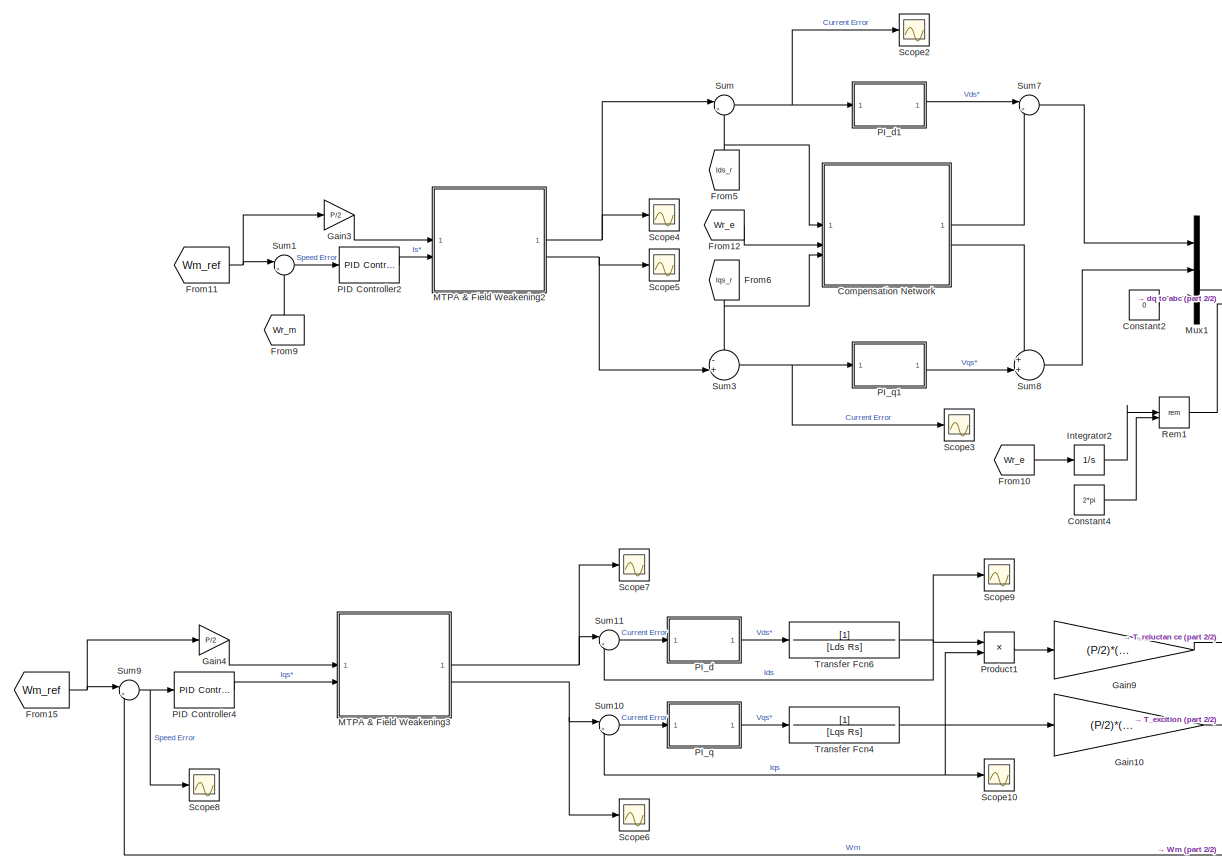
[diagram: root canvas - part 1/2, left side, full height]
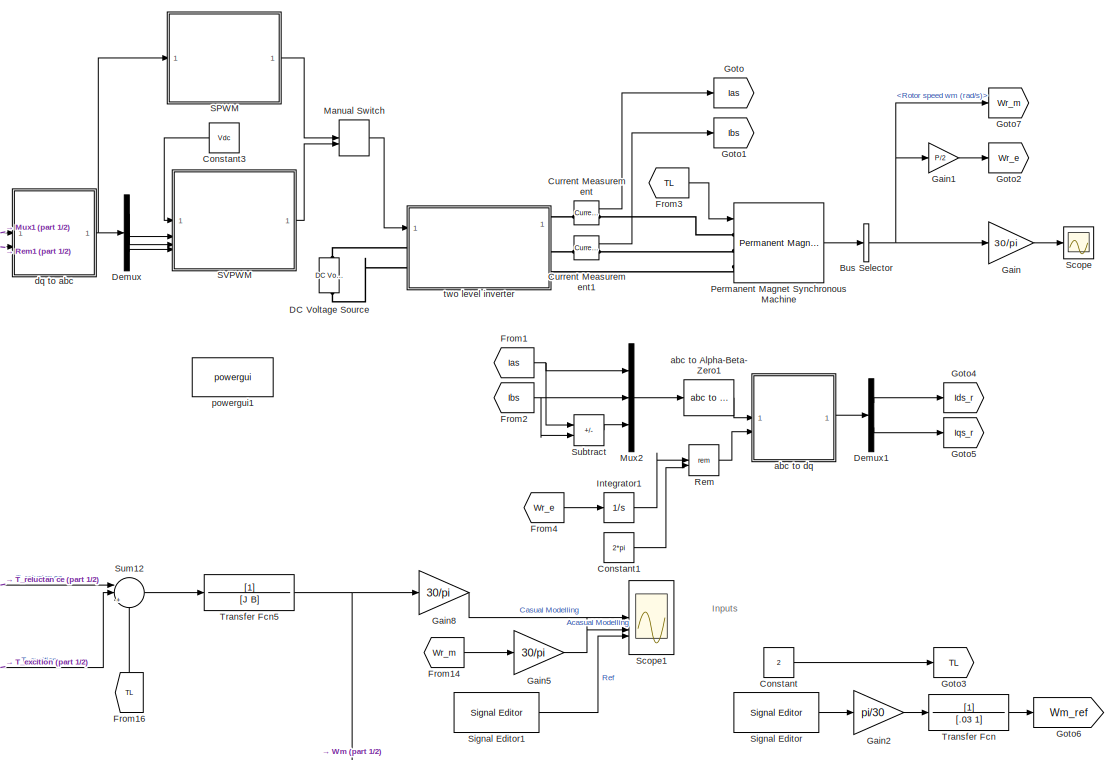
[diagram: root canvas - part 2/2, right side, full height]
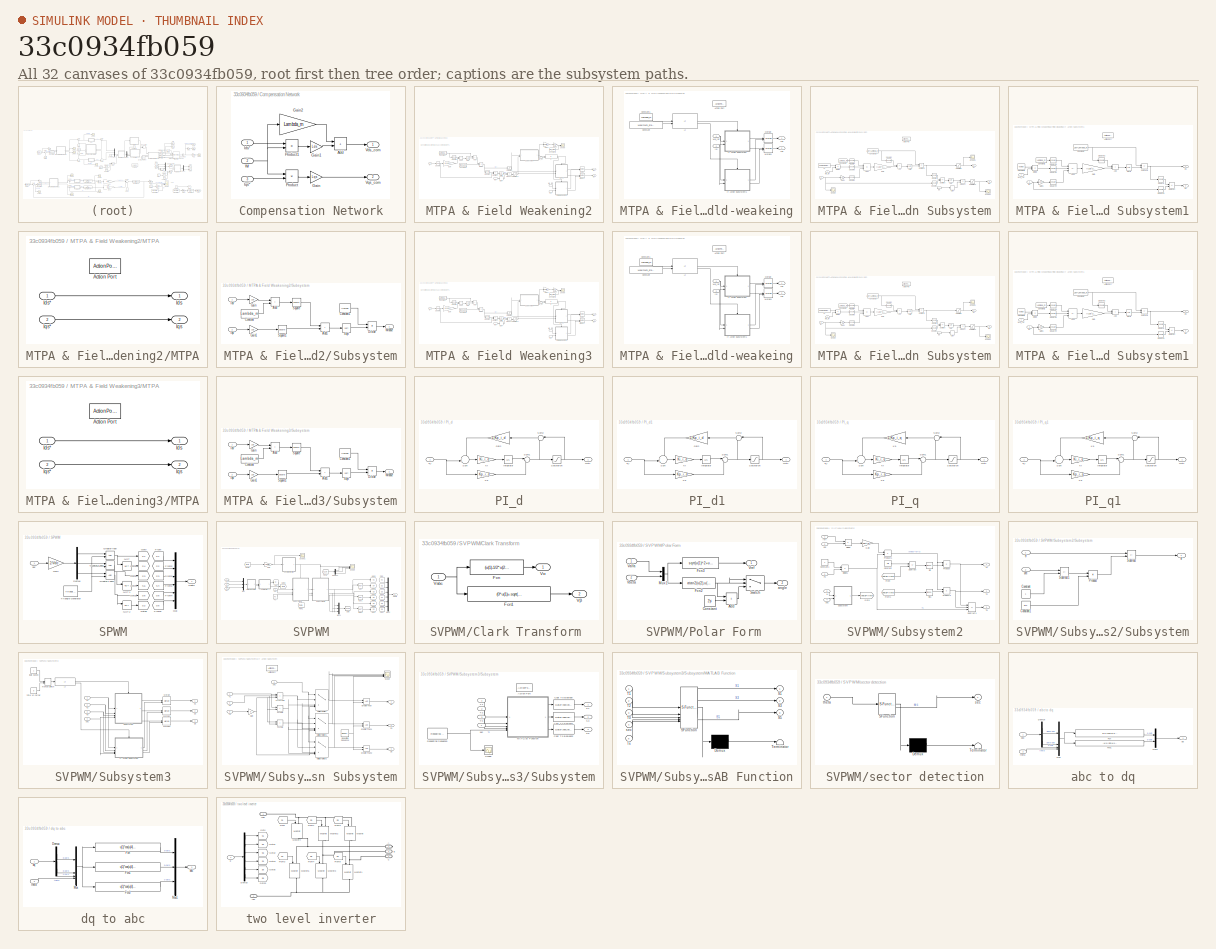
[diagram: thumbnail index - all 32 canvases of the model, root first then tree order]
MODEL slx_33c0934fb059
KIND model
CONFIG AbsTol = auto
CONFIG EnableMultiTasking = off
CONFIG FixedStep = auto
CONFIG MaxStep = .0001
CONFIG MinStep = auto
CONFIG RelTol = 1e-3
CONFIG SampleTimeConstraint = Unconstrained
CONFIG SolverName = VariableStepAuto
CONFIG StartTime = 0.0
CONFIG StopTime = 1.5
BLOCK [BusSelector] Bus Selector
  OutputSignals = Rotor speed wm (rad/s)
BLOCK [SubSystem] Compensation Network
BLOCK [Sum] Compensation Network/Add
  IconShape = rectangular
BLOCK [Gain] Compensation Network/Gain
  Gain = Lqs
BLOCK [Gain] Compensation Network/Gain1
  Gain = Lds
BLOCK [Gain] Compensation Network/Gain2
  Gain = Lambda_m
BLOCK [Inport] Compensation Network/Ids*
BLOCK [Inport] Compensation Network/Iqs*
  Port = 3
BLOCK [Product] Compensation Network/Product
BLOCK [Product] Compensation Network/Product1
BLOCK [Outport] Compensation Network/Vds_com
BLOCK [Outport] Compensation Network/Vqs_com
  Port = 2
BLOCK [Inport] Compensation Network/Wr
  Port = 2
BLOCK [Constant] Constant
  Value = 2
BLOCK [Constant] Constant1
  Value = 2*pi
BLOCK [Constant] Constant2
  Value = 0
BLOCK [Constant] Constant3
  NameLocation = top
  Value = Vdc
BLOCK [Constant] Constant4
  Value = 2*pi
BLOCK [Reference] Current Measurement  REF=spsCurrentMeasurementLib/Current Measurement
  LibrarySourceBlock = sps_lib/Sensors and Measurements/Current Measurement
  SourceBlock = spsCurrentMeasurementLib/Current Measurement
  SourceType = Current Measurement
  UserDataPersistent = on
BLOCK [Reference] Current Measurement1  REF=spsCurrentMeasurementLib/Current Measurement
  LibrarySourceBlock = sps_lib/Sensors and Measurements/Current Measurement
  SourceBlock = spsCurrentMeasurementLib/Current Measurement
  SourceType = Current Measurement
  UserDataPersistent = on
BLOCK [Reference] DC Voltage Source  REF=spsDCVoltageSourceLib/DC Voltage Source
  LibrarySourceBlock = sps_lib/Sources/DC Voltage Source
  SourceBlock = spsDCVoltageSourceLib/DC Voltage Source
  SourceType = DC Voltage Source
BLOCK [Demux] Demux
  Outputs = 3
BLOCK [Demux] Demux1
  Outputs = 2
BLOCK [From] From1
  GotoTag = Ias
BLOCK [From] From10
  GotoTag = Wr_e
  NameLocation = left
BLOCK [From] From11
  GotoTag = Wm_ref
BLOCK [From] From12
  GotoTag = Wr_e
BLOCK [From] From14
  GotoTag = Wr_m
BLOCK [From] From15
  GotoTag = Wm_ref
BLOCK [From] From16
  GotoTag = TL
  NameLocation = right
BLOCK [From] From2
  GotoTag = Ibs
BLOCK [From] From3
  GotoTag = TL
BLOCK [From] From4
  GotoTag = Wr_e
  NameLocation = left
BLOCK [From] From5
  GotoTag = Ids_r
  NameLocation = right
BLOCK [From] From6
  GotoTag = Iqs_r
  NameLocation = left
BLOCK [From] From9
  GotoTag = Wr_m
  NameLocation = right
BLOCK [Gain] Gain
  Gain = 30/pi
BLOCK [Gain] Gain1
  Gain = P/2
BLOCK [Gain] Gain10
  Gain = (P/2)*(3/2)*Lambda_m
BLOCK [Gain] Gain2
  Gain = pi/30
BLOCK [Gain] Gain3
  Gain = P/2
BLOCK [Gain] Gain4
  Gain = P/2
BLOCK [Gain] Gain5
  Gain = 30/pi
BLOCK [Gain] Gain8
  Gain = 30/pi
BLOCK [Gain] Gain9
  Gain = (P/2)*(3/2)*(Lds-Lqs)
BLOCK [Goto] Goto
  GotoTag = Ias
BLOCK [Goto] Goto1
  GotoTag = Ibs
BLOCK [Goto] Goto2
  GotoTag = Wr_e
BLOCK [Goto] Goto3
  GotoTag = TL
BLOCK [Goto] Goto4
  GotoTag = Ids_r
BLOCK [Goto] Goto5
  GotoTag = Iqs_r
BLOCK [Goto] Goto6
  GotoTag = Wm_ref
BLOCK [Goto] Goto7
  GotoTag = Wr_m
BLOCK [Integrator] Integrator1
BLOCK [Integrator] Integrator2
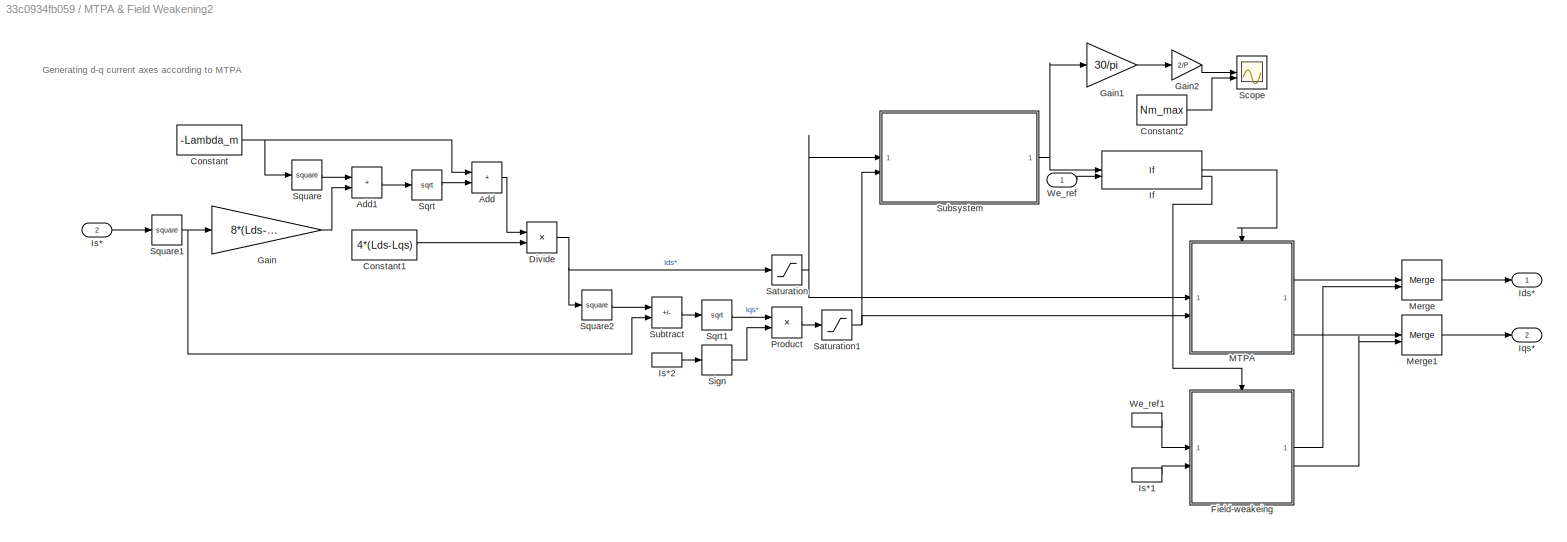
BLOCK [SubSystem] MTPA & Field Weakening2
BLOCK [Inport] MTPA & Field Weakening2/ We_ref
BLOCK [InportShadow] MTPA & Field Weakening2/ We_ref1
BLOCK [Sum] MTPA & Field Weakening2/Add
  IconShape = rectangular
BLOCK [Sum] MTPA & Field Weakening2/Add1
  IconShape = rectangular
BLOCK [Constant] MTPA & Field Weakening2/Constant
  Value = -Lambda_m
BLOCK [Constant] MTPA & Field Weakening2/Constant1
  Value = 4*(Lds-Lqs)
BLOCK [Constant] MTPA & Field Weakening2/Constant2
  Value = Nm_max
BLOCK [Product] MTPA & Field Weakening2/Divide
  Inputs = */
BLOCK [SubSystem] MTPA & Field Weakening2/Field-weakeing
  TreatAsAtomicUnit = on
BLOCK [ActionPort] MTPA & Field Weakening2/Field-weakeing/Action Port
  ActionPortLabel = else
BLOCK [Constant] MTPA & Field Weakening2/Field-weakeing/Constant
  Value = Maximum_stator_flux_linkage
BLOCK [Constant] MTPA & Field Weakening2/Field-weakeing/Constant1
  Value = Lambda_m
BLOCK [Outport] MTPA & Field Weakening2/Field-weakeing/Ids
BLOCK [If] MTPA & Field Weakening2/Field-weakeing/If
  IfExpression = u1 >= u2
  NumInputs = 2
BLOCK [SubSystem] MTPA & Field Weakening2/Field-weakeing/If Action Subsystem
  TreatAsAtomicUnit = on
BLOCK [ActionPort] MTPA & Field Weakening2/Field-weakeing/If Action Subsystem/Action Port
  ActionPortLabel = if(u1 >= u2)
BLOCK [Sum] MTPA & Field Weakening2/Field-weakeing/If Action Subsystem/Add
  IconShape = rectangular
BLOCK [Sum] MTPA & Field Weakening2/Field-weakeing/If Action Subsystem/Add1
  IconShape = rectangular
  Inputs = +-+
BLOCK [Constant] MTPA & Field Weakening2/Field-weakeing/If Action Subsystem/Constant1
  Value = Lds*Lambda_m
BLOCK [Constant] MTPA & Field Weakening2/Field-weakeing/If Action Subsystem/Constant2
  Value = Lambda_m
BLOCK [Product] MTPA & Field Weakening2/Field-weakeing/If Action Subsystem/Divide
  Inputs = */
BLOCK [Gain] MTPA & Field Weakening2/Field-weakeing/If Action Subsystem/Gain
  Gain = ((Lqs^2)-(Lds^2))
BLOCK [Gain] MTPA & Field Weakening2/Field-weakeing/If Action Subsystem/Gain1
  Gain = Lds
BLOCK [Outport] MTPA & Field Weakening2/Field-weakeing/If Action Subsystem/Ids
BLOCK [Outport] MTPA & Field Weakening2/Field-weakeing/If Action Subsystem/Iqs
  Port = 2
BLOCK [Inport] MTPA & Field Weakening2/Field-weakeing/If Action Subsystem/Is*
  Port = 2
BLOCK [InportShadow] MTPA & Field Weakening2/Field-weakeing/If Action Subsystem/Is*1
  Port = 2
BLOCK [Product] MTPA & Field Weakening2/Field-weakeing/If Action Subsystem/Product
BLOCK [Saturate] MTPA & Field Weakening2/Field-weakeing/If Action Subsystem/Saturation
  LinearizeAsGain = off
  LowerLimit = -Ismax
  UpperLimit = 0
BLOCK [Saturate] MTPA & Field Weakening2/Field-weakeing/If Action Subsystem/Saturation1
  LowerLimit = -Ismax
  UpperLimit = Ismax
BLOCK [Scope] MTPA & Field Weakening2/Field-weakeing/If Action Subsystem/Scope
  Floating = off
  NumInputPorts = 1
  ScopeSpecificationString = Simulink.scopes.TimeScopeBlockCfg('CurrentConfiguration', extmgr.ConfigurationSet(extmgr.Configuration('Core','General UI',true),extmgr.Configuration('Core','Source UI',true),extmgr.Configuration('Sources','WiredSimulink',true,'DataLoggingVariableName','ScopeData9'),extmgr.Configuration('Visuals','Time Domain',true,'SerializedDisplays',{struct('MinYLimReal','-1.51001','MaxYLimReal','32.76164','YLa...<+1366ch>
BLOCK [Scope] MTPA & Field Weakening2/Field-weakeing/If Action Subsystem/Scope1
  Floating = off
  NumInputPorts = 1
  ScopeSpecificationString = Simulink.scopes.TimeScopeBlockCfg('CurrentConfiguration', extmgr.ConfigurationSet(extmgr.Configuration('Core','General UI',true),extmgr.Configuration('Core','Source UI',true),extmgr.Configuration('Sources','WiredSimulink',true,'DataLoggingVariableName','ScopeData10'),extmgr.Configuration('Visuals','Time Domain',true,'SerializedDisplays',{struct('MinYLimReal','1.2909','MaxYLimReal','6.39021','YLabe...<+1390ch>
BLOCK [Scope] MTPA & Field Weakening2/Field-weakeing/If Action Subsystem/Scope2
  Floating = off
  NumInputPorts = 1
  ScopeSpecificationString = Simulink.scopes.TimeScopeBlockCfg('CurrentConfiguration', extmgr.ConfigurationSet(extmgr.Configuration('Core','General UI',true),extmgr.Configuration('Core','Source UI',true),extmgr.Configuration('Sources','WiredSimulink',true,'DataLoggingVariableName','ScopeData11'),extmgr.Configuration('Visuals','Time Domain',true,'SerializedDisplays',{struct('MinYLimReal','-0.000013','MaxYLimReal','0.000001','Y...<+1403ch>
BLOCK [Signum] MTPA & Field Weakening2/Field-weakeing/If Action Subsystem/Sign
BLOCK [Sqrt] MTPA & Field Weakening2/Field-weakeing/If Action Subsystem/Sqrt
  IntermediateResultsDataTypeStr = double
BLOCK [Sqrt] MTPA & Field Weakening2/Field-weakeing/If Action Subsystem/Sqrt1
BLOCK [Math] MTPA & Field Weakening2/Field-weakeing/If Action Subsystem/Square
  Operator = square
BLOCK [Math] MTPA & Field Weakening2/Field-weakeing/If Action Subsystem/Square1
  Operator = square
BLOCK [Math] MTPA & Field Weakening2/Field-weakeing/If Action Subsystem/Square2
  Operator = square
BLOCK [Math] MTPA & Field Weakening2/Field-weakeing/If Action Subsystem/Square3
  Operator = square
BLOCK [Math] MTPA & Field Weakening2/Field-weakeing/If Action Subsystem/Square4
  Operator = square
BLOCK [Math] MTPA & Field Weakening2/Field-weakeing/If Action Subsystem/Square5
  Operator = square
BLOCK [Sum] MTPA & Field Weakening2/Field-weakeing/If Action Subsystem/Subtract
  IconShape = rectangular
  Inputs = -+
BLOCK [Sum] MTPA & Field Weakening2/Field-weakeing/If Action Subsystem/Subtract1
  IconShape = rectangular
  Inputs = +-
BLOCK [Constant] MTPA & Field Weakening2/Field-weakeing/If Action Subsystem/Vf
  Value = Vsmax-Ismax*Rs
BLOCK [Inport] MTPA & Field Weakening2/Field-weakeing/If Action Subsystem/We_ref
BLOCK [SubSystem] MTPA & Field Weakening2/Field-weakeing/If Action Subsystem1
  TreatAsAtomicUnit = on
BLOCK [ActionPort] MTPA & Field Weakening2/Field-weakeing/If Action Subsystem1/Action Port
  ActionPortLabel = else
BLOCK [Sum] MTPA & Field Weakening2/Field-weakeing/If Action Subsystem1/Add
  IconShape = rectangular
BLOCK [Sum] MTPA & Field Weakening2/Field-weakeing/If Action Subsystem1/Add1
  IconShape = rectangular
  Inputs = +-+
BLOCK [Constant] MTPA & Field Weakening2/Field-weakeing/If Action Subsystem1/Constant1
  Value = Lds*Lambda_m
BLOCK [Constant] MTPA & Field Weakening2/Field-weakeing/If Action Subsystem1/Constant2
  Value = Lambda_m
BLOCK [Constant] MTPA & Field Weakening2/Field-weakeing/If Action Subsystem1/Constant3
  Value = Vsmax
BLOCK [Product] MTPA & Field Weakening2/Field-weakeing/If Action Subsystem1/Divide
  Inputs = */
BLOCK [Gain] MTPA & Field Weakening2/Field-weakeing/If Action Subsystem1/Gain
  Gain = ((Lqs^2)-(Lds^2))
BLOCK [Gain] MTPA & Field Weakening2/Field-weakeing/If Action Subsystem1/Gain1
  Gain = Lqs
BLOCK [Outport] MTPA & Field Weakening2/Field-weakeing/If Action Subsystem1/Ids
BLOCK [Outport] MTPA & Field Weakening2/Field-weakeing/If Action Subsystem1/Iqs
  Port = 2
BLOCK [Inport] MTPA & Field Weakening2/Field-weakeing/If Action Subsystem1/Is*
  Port = 2
BLOCK [Sqrt] MTPA & Field Weakening2/Field-weakeing/If Action Subsystem1/Sqrt1
BLOCK [Math] MTPA & Field Weakening2/Field-weakeing/If Action Subsystem1/Square
  Operator = square
BLOCK [Math] MTPA & Field Weakening2/Field-weakeing/If Action Subsystem1/Square1
  Operator = square
BLOCK [Math] MTPA & Field Weakening2/Field-weakeing/If Action Subsystem1/Square2
  Operator = square
BLOCK [Math] MTPA & Field Weakening2/Field-weakeing/If Action Subsystem1/Square3
  Operator = square
BLOCK [Math] MTPA & Field Weakening2/Field-weakeing/If Action Subsystem1/Square4
  Operator = square
BLOCK [Math] MTPA & Field Weakening2/Field-weakeing/If Action Subsystem1/Square5
  Operator = square
BLOCK [Sum] MTPA & Field Weakening2/Field-weakeing/If Action Subsystem1/Subtract
  IconShape = rectangular
  Inputs = -+
BLOCK [Sum] MTPA & Field Weakening2/Field-weakeing/If Action Subsystem1/Subtract1
  IconShape = rectangular
  Inputs = +-
BLOCK [Inport] MTPA & Field Weakening2/Field-weakeing/If Action Subsystem1/We_ref
BLOCK [Outport] MTPA & Field Weakening2/Field-weakeing/Iqs
  Port = 2
BLOCK [Inport] MTPA & Field Weakening2/Field-weakeing/Is*
  Port = 2
BLOCK [Merge] MTPA & Field Weakening2/Field-weakeing/Merge
BLOCK [Merge] MTPA & Field Weakening2/Field-weakeing/Merge1
BLOCK [Inport] MTPA & Field Weakening2/Field-weakeing/We_ref
BLOCK [Gain] MTPA & Field Weakening2/Gain
  Gain = 8*(Lds-Lqs)^2
BLOCK [Gain] MTPA & Field Weakening2/Gain1
  Gain = 30/pi
BLOCK [Gain] MTPA & Field Weakening2/Gain2
  Gain = 2/P
BLOCK [Outport] MTPA & Field Weakening2/Ids*
BLOCK [If] MTPA & Field Weakening2/If
  IfExpression = u1 > u2
  NumInputs = 2
BLOCK [Outport] MTPA & Field Weakening2/Iqs*
  Port = 2
BLOCK [Inport] MTPA & Field Weakening2/Is*
  Port = 2
BLOCK [InportShadow] MTPA & Field Weakening2/Is*1
  Port = 2
BLOCK [InportShadow] MTPA & Field Weakening2/Is*2
  Port = 2
BLOCK [SubSystem] MTPA & Field Weakening2/MTPA
  TreatAsAtomicUnit = on
BLOCK [ActionPort] MTPA & Field Weakening2/MTPA/Action Port
  ActionPortLabel = if(u1 > u2)
BLOCK [Outport] MTPA & Field Weakening2/MTPA/Ids
BLOCK [Inport] MTPA & Field Weakening2/MTPA/Ids*
BLOCK [Outport] MTPA & Field Weakening2/MTPA/Iqs
  Port = 2
BLOCK [Inport] MTPA & Field Weakening2/MTPA/Iqs*
  Port = 2
BLOCK [Merge] MTPA & Field Weakening2/Merge
BLOCK [Merge] MTPA & Field Weakening2/Merge1
BLOCK [Product] MTPA & Field Weakening2/Product
BLOCK [Saturate] MTPA & Field Weakening2/Saturation
  LowerLimit = -Ismax
  UpperLimit = 0
BLOCK [Saturate] MTPA & Field Weakening2/Saturation1
  LowerLimit = -Ismax
  UpperLimit = Ismax
BLOCK [Scope] MTPA & Field Weakening2/Scope
  Floating = off
  NumInputPorts = 2
  ScopeSpecificationString = Simulink.scopes.TimeScopeBlockCfg('CurrentConfiguration', extmgr.ConfigurationSet(extmgr.Configuration('Core','General UI',true),extmgr.Configuration('Core','Source UI',true),extmgr.Configuration('Sources','WiredSimulink',true,'DataLoggingVariableName','ScopeData5'),extmgr.Configuration('Visuals','Time Domain',true,'SerializedDisplays',{struct('MinYLimReal','2173.72813','MaxYLimReal','3052.49955',...<+1452ch>
BLOCK [Signum] MTPA & Field Weakening2/Sign
BLOCK [Sqrt] MTPA & Field Weakening2/Sqrt
BLOCK [Sqrt] MTPA & Field Weakening2/Sqrt1
BLOCK [Math] MTPA & Field Weakening2/Square
  Operator = square
BLOCK [Math] MTPA & Field Weakening2/Square1
  Operator = square
BLOCK [Math] MTPA & Field Weakening2/Square2
  Operator = square
BLOCK [SubSystem] MTPA & Field Weakening2/Subsystem
BLOCK [Sum] MTPA & Field Weakening2/Subsystem/Add
  IconShape = rectangular
BLOCK [Sum] MTPA & Field Weakening2/Subsystem/Add1
  IconShape = rectangular
BLOCK [Constant] MTPA & Field Weakening2/Subsystem/Constant
  Value = Lambda_m
BLOCK [Constant] MTPA & Field Weakening2/Subsystem/Constant1
  Value = Vsmax
BLOCK [Product] MTPA & Field Weakening2/Subsystem/Divide
  Inputs = */
BLOCK [Gain] MTPA & Field Weakening2/Subsystem/Gain
  Gain = Lds
BLOCK [Gain] MTPA & Field Weakening2/Subsystem/Gain1
  Gain = Lqs
BLOCK [Inport] MTPA & Field Weakening2/Subsystem/Ids*
BLOCK [Inport] MTPA & Field Weakening2/Subsystem/Iqs*
  Port = 2
BLOCK [Sqrt] MTPA & Field Weakening2/Subsystem/Sqrt
BLOCK [Math] MTPA & Field Weakening2/Subsystem/Square
  Operator = square
BLOCK [Math] MTPA & Field Weakening2/Subsystem/Square1
  Operator = square
BLOCK [Outport] MTPA & Field Weakening2/Subsystem/Wrbase
BLOCK [Sum] MTPA & Field Weakening2/Subtract
  IconShape = rectangular
  Inputs = -+
BLOCK [SubSystem] MTPA & Field Weakening3
BLOCK [Inport] MTPA & Field Weakening3/ We_ref
BLOCK [InportShadow] MTPA & Field Weakening3/ We_ref1
BLOCK [Sum] MTPA & Field Weakening3/Add
  IconShape = rectangular
BLOCK [Sum] MTPA & Field Weakening3/Add1
  IconShape = rectangular
BLOCK [Constant] MTPA & Field Weakening3/Constant
  Value = -Lambda_m
BLOCK [Constant] MTPA & Field Weakening3/Constant1
  Value = 4*(Lds-Lqs)
BLOCK [Constant] MTPA & Field Weakening3/Constant2
  Value = Nm_max
BLOCK [Product] MTPA & Field Weakening3/Divide
  Inputs = */
BLOCK [SubSystem] MTPA & Field Weakening3/Field-weakeing
  TreatAsAtomicUnit = on
BLOCK [ActionPort] MTPA & Field Weakening3/Field-weakeing/Action Port
  ActionPortLabel = else
BLOCK [Constant] MTPA & Field Weakening3/Field-weakeing/Constant
  Value = Maximum_stator_flux_linkage
BLOCK [Constant] MTPA & Field Weakening3/Field-weakeing/Constant1
  Value = Lambda_m
BLOCK [Outport] MTPA & Field Weakening3/Field-weakeing/Ids
BLOCK [If] MTPA & Field Weakening3/Field-weakeing/If
  IfExpression = u1 >= u2
  NumInputs = 2
BLOCK [SubSystem] MTPA & Field Weakening3/Field-weakeing/If Action Subsystem
  TreatAsAtomicUnit = on
BLOCK [ActionPort] MTPA & Field Weakening3/Field-weakeing/If Action Subsystem/Action Port
  ActionPortLabel = if(u1 >= u2)
BLOCK [Sum] MTPA & Field Weakening3/Field-weakeing/If Action Subsystem/Add
  IconShape = rectangular
BLOCK [Sum] MTPA & Field Weakening3/Field-weakeing/If Action Subsystem/Add1
  IconShape = rectangular
  Inputs = +-+
BLOCK [Constant] MTPA & Field Weakening3/Field-weakeing/If Action Subsystem/Constant1
  Value = Lds*Lambda_m
BLOCK [Constant] MTPA & Field Weakening3/Field-weakeing/If Action Subsystem/Constant2
  Value = Lambda_m
BLOCK [Product] MTPA & Field Weakening3/Field-weakeing/If Action Subsystem/Divide
  Inputs = */
BLOCK [Gain] MTPA & Field Weakening3/Field-weakeing/If Action Subsystem/Gain
  Gain = ((Lqs^2)-(Lds^2))
BLOCK [Gain] MTPA & Field Weakening3/Field-weakeing/If Action Subsystem/Gain1
  Gain = Lds
BLOCK [Outport] MTPA & Field Weakening3/Field-weakeing/If Action Subsystem/Ids
BLOCK [Outport] MTPA & Field Weakening3/Field-weakeing/If Action Subsystem/Iqs
  Port = 2
BLOCK [Inport] MTPA & Field Weakening3/Field-weakeing/If Action Subsystem/Is*
  Port = 2
BLOCK [InportShadow] MTPA & Field Weakening3/Field-weakeing/If Action Subsystem/Is*1
  Port = 2
BLOCK [Product] MTPA & Field Weakening3/Field-weakeing/If Action Subsystem/Product
BLOCK [Saturate] MTPA & Field Weakening3/Field-weakeing/If Action Subsystem/Saturation
  LinearizeAsGain = off
  LowerLimit = -Ismax
  UpperLimit = 0
BLOCK [Saturate] MTPA & Field Weakening3/Field-weakeing/If Action Subsystem/Saturation1
  LowerLimit = -Ismax
  UpperLimit = Ismax
BLOCK [Scope] MTPA & Field Weakening3/Field-weakeing/If Action Subsystem/Scope
  Floating = off
  NumInputPorts = 1
  ScopeSpecificationString = Simulink.scopes.TimeScopeBlockCfg('CurrentConfiguration', extmgr.ConfigurationSet(extmgr.Configuration('Core','General UI',true),extmgr.Configuration('Core','Source UI',true),extmgr.Configuration('Sources','WiredSimulink',true,'DataLoggingVariableName','ScopeData9'),extmgr.Configuration('Visuals','Time Domain',true,'SerializedDisplays',{struct('MinYLimReal','-1.51001','MaxYLimReal','32.76164','YLa...<+1366ch>
BLOCK [Scope] MTPA & Field Weakening3/Field-weakeing/If Action Subsystem/Scope1
  Floating = off
  NumInputPorts = 1
  ScopeSpecificationString = Simulink.scopes.TimeScopeBlockCfg('CurrentConfiguration', extmgr.ConfigurationSet(extmgr.Configuration('Core','General UI',true),extmgr.Configuration('Core','Source UI',true),extmgr.Configuration('Sources','WiredSimulink',true,'DataLoggingVariableName','ScopeData10'),extmgr.Configuration('Visuals','Time Domain',true,'SerializedDisplays',{struct('MinYLimReal','1.2909','MaxYLimReal','6.39021','YLabe...<+1390ch>
BLOCK [Scope] MTPA & Field Weakening3/Field-weakeing/If Action Subsystem/Scope2
  Floating = off
  NumInputPorts = 1
  ScopeSpecificationString = Simulink.scopes.TimeScopeBlockCfg('CurrentConfiguration', extmgr.ConfigurationSet(extmgr.Configuration('Core','General UI',true),extmgr.Configuration('Core','Source UI',true),extmgr.Configuration('Sources','WiredSimulink',true,'DataLoggingVariableName','ScopeData11'),extmgr.Configuration('Visuals','Time Domain',true,'SerializedDisplays',{struct('MinYLimReal','-0.000013','MaxYLimReal','0.000001','Y...<+1403ch>
BLOCK [Signum] MTPA & Field Weakening3/Field-weakeing/If Action Subsystem/Sign
BLOCK [Sqrt] MTPA & Field Weakening3/Field-weakeing/If Action Subsystem/Sqrt
  IntermediateResultsDataTypeStr = double
BLOCK [Sqrt] MTPA & Field Weakening3/Field-weakeing/If Action Subsystem/Sqrt1
BLOCK [Math] MTPA & Field Weakening3/Field-weakeing/If Action Subsystem/Square
  Operator = square
BLOCK [Math] MTPA & Field Weakening3/Field-weakeing/If Action Subsystem/Square1
  Operator = square
BLOCK [Math] MTPA & Field Weakening3/Field-weakeing/If Action Subsystem/Square2
  Operator = square
BLOCK [Math] MTPA & Field Weakening3/Field-weakeing/If Action Subsystem/Square3
  Operator = square
BLOCK [Math] MTPA & Field Weakening3/Field-weakeing/If Action Subsystem/Square4
  Operator = square
BLOCK [Math] MTPA & Field Weakening3/Field-weakeing/If Action Subsystem/Square5
  Operator = square
BLOCK [Sum] MTPA & Field Weakening3/Field-weakeing/If Action Subsystem/Subtract
  IconShape = rectangular
  Inputs = -+
BLOCK [Sum] MTPA & Field Weakening3/Field-weakeing/If Action Subsystem/Subtract1
  IconShape = rectangular
  Inputs = +-
BLOCK [Constant] MTPA & Field Weakening3/Field-weakeing/If Action Subsystem/Vf
  Value = Vsmax-Ismax*Rs
BLOCK [Inport] MTPA & Field Weakening3/Field-weakeing/If Action Subsystem/We_ref
BLOCK [SubSystem] MTPA & Field Weakening3/Field-weakeing/If Action Subsystem1
  TreatAsAtomicUnit = on
BLOCK [ActionPort] MTPA & Field Weakening3/Field-weakeing/If Action Subsystem1/Action Port
  ActionPortLabel = else
BLOCK [Sum] MTPA & Field Weakening3/Field-weakeing/If Action Subsystem1/Add
  IconShape = rectangular
BLOCK [Sum] MTPA & Field Weakening3/Field-weakeing/If Action Subsystem1/Add1
  IconShape = rectangular
  Inputs = +-+
BLOCK [Constant] MTPA & Field Weakening3/Field-weakeing/If Action Subsystem1/Constant1
  Value = Lds*Lambda_m
BLOCK [Constant] MTPA & Field Weakening3/Field-weakeing/If Action Subsystem1/Constant2
  Value = Lambda_m
BLOCK [Constant] MTPA & Field Weakening3/Field-weakeing/If Action Subsystem1/Constant3
  Value = Vsmax
BLOCK [Product] MTPA & Field Weakening3/Field-weakeing/If Action Subsystem1/Divide
  Inputs = */
BLOCK [Gain] MTPA & Field Weakening3/Field-weakeing/If Action Subsystem1/Gain
  Gain = ((Lqs^2)-(Lds^2))
BLOCK [Gain] MTPA & Field Weakening3/Field-weakeing/If Action Subsystem1/Gain1
  Gain = Lqs
BLOCK [Outport] MTPA & Field Weakening3/Field-weakeing/If Action Subsystem1/Ids
BLOCK [Outport] MTPA & Field Weakening3/Field-weakeing/If Action Subsystem1/Iqs
  Port = 2
BLOCK [Inport] MTPA & Field Weakening3/Field-weakeing/If Action Subsystem1/Is*
  Port = 2
BLOCK [Sqrt] MTPA & Field Weakening3/Field-weakeing/If Action Subsystem1/Sqrt1
BLOCK [Math] MTPA & Field Weakening3/Field-weakeing/If Action Subsystem1/Square
  Operator = square
BLOCK [Math] MTPA & Field Weakening3/Field-weakeing/If Action Subsystem1/Square1
  Operator = square
BLOCK [Math] MTPA & Field Weakening3/Field-weakeing/If Action Subsystem1/Square2
  Operator = square
BLOCK [Math] MTPA & Field Weakening3/Field-weakeing/If Action Subsystem1/Square3
  Operator = square
BLOCK [Math] MTPA & Field Weakening3/Field-weakeing/If Action Subsystem1/Square4
  Operator = square
BLOCK [Math] MTPA & Field Weakening3/Field-weakeing/If Action Subsystem1/Square5
  Operator = square
BLOCK [Sum] MTPA & Field Weakening3/Field-weakeing/If Action Subsystem1/Subtract
  IconShape = rectangular
  Inputs = -+
BLOCK [Sum] MTPA & Field Weakening3/Field-weakeing/If Action Subsystem1/Subtract1
  IconShape = rectangular
  Inputs = +-
BLOCK [Inport] MTPA & Field Weakening3/Field-weakeing/If Action Subsystem1/We_ref
BLOCK [Outport] MTPA & Field Weakening3/Field-weakeing/Iqs
  Port = 2
BLOCK [Inport] MTPA & Field Weakening3/Field-weakeing/Is*
  Port = 2
BLOCK [Merge] MTPA & Field Weakening3/Field-weakeing/Merge
BLOCK [Merge] MTPA & Field Weakening3/Field-weakeing/Merge1
BLOCK [Inport] MTPA & Field Weakening3/Field-weakeing/We_ref
BLOCK [Gain] MTPA & Field Weakening3/Gain
  Gain = 8*(Lds-Lqs)^2
BLOCK [Gain] MTPA & Field Weakening3/Gain1
  Gain = 30/pi
BLOCK [Gain] MTPA & Field Weakening3/Gain2
  Gain = 2/P
BLOCK [Outport] MTPA & Field Weakening3/Ids*
BLOCK [If] MTPA & Field Weakening3/If
  IfExpression = u1 > u2
  NumInputs = 2
BLOCK [Outport] MTPA & Field Weakening3/Iqs*
  Port = 2
BLOCK [Inport] MTPA & Field Weakening3/Is*
  Port = 2
BLOCK [InportShadow] MTPA & Field Weakening3/Is*1
  Port = 2
BLOCK [InportShadow] MTPA & Field Weakening3/Is*2
  Port = 2
BLOCK [SubSystem] MTPA & Field Weakening3/MTPA
  TreatAsAtomicUnit = on
BLOCK [ActionPort] MTPA & Field Weakening3/MTPA/Action Port
  ActionPortLabel = if(u1 > u2)
BLOCK [Outport] MTPA & Field Weakening3/MTPA/Ids
BLOCK [Inport] MTPA & Field Weakening3/MTPA/Ids*
BLOCK [Outport] MTPA & Field Weakening3/MTPA/Iqs
  Port = 2
BLOCK [Inport] MTPA & Field Weakening3/MTPA/Iqs*
  Port = 2
BLOCK [Merge] MTPA & Field Weakening3/Merge
BLOCK [Merge] MTPA & Field Weakening3/Merge1
BLOCK [Product] MTPA & Field Weakening3/Product
BLOCK [Saturate] MTPA & Field Weakening3/Saturation
  LowerLimit = -Ismax
  UpperLimit = 0
BLOCK [Saturate] MTPA & Field Weakening3/Saturation1
  LowerLimit = -Ismax
  UpperLimit = Ismax
BLOCK [Scope] MTPA & Field Weakening3/Scope
  Floating = off
  NumInputPorts = 2
  ScopeSpecificationString = Simulink.scopes.TimeScopeBlockCfg('CurrentConfiguration', extmgr.ConfigurationSet(extmgr.Configuration('Core','General UI',true),extmgr.Configuration('Core','Source UI',true),extmgr.Configuration('Sources','WiredSimulink',true,'DataLoggingVariableName','ScopeData5'),extmgr.Configuration('Visuals','Time Domain',true,'SerializedDisplays',{struct('MinYLimReal','2173.72813','MaxYLimReal','3052.49955',...<+1472ch>
BLOCK [Signum] MTPA & Field Weakening3/Sign
BLOCK [Sqrt] MTPA & Field Weakening3/Sqrt
BLOCK [Sqrt] MTPA & Field Weakening3/Sqrt1
BLOCK [Math] MTPA & Field Weakening3/Square
  Operator = square
BLOCK [Math] MTPA & Field Weakening3/Square1
  Operator = square
BLOCK [Math] MTPA & Field Weakening3/Square2
  Operator = square
BLOCK [SubSystem] MTPA & Field Weakening3/Subsystem
BLOCK [Sum] MTPA & Field Weakening3/Subsystem/Add
  IconShape = rectangular
BLOCK [Sum] MTPA & Field Weakening3/Subsystem/Add1
  IconShape = rectangular
BLOCK [Constant] MTPA & Field Weakening3/Subsystem/Constant
  Value = Lambda_m
BLOCK [Constant] MTPA & Field Weakening3/Subsystem/Constant1
  Value = Vsmax
BLOCK [Product] MTPA & Field Weakening3/Subsystem/Divide
  Inputs = */
BLOCK [Gain] MTPA & Field Weakening3/Subsystem/Gain
  Gain = Lds
BLOCK [Gain] MTPA & Field Weakening3/Subsystem/Gain1
  Gain = Lqs
BLOCK [Inport] MTPA & Field Weakening3/Subsystem/Ids*
BLOCK [Inport] MTPA & Field Weakening3/Subsystem/Iqs*
  Port = 2
BLOCK [Sqrt] MTPA & Field Weakening3/Subsystem/Sqrt
BLOCK [Math] MTPA & Field Weakening3/Subsystem/Square
  Operator = square
BLOCK [Math] MTPA & Field Weakening3/Subsystem/Square1
  Operator = square
BLOCK [Outport] MTPA & Field Weakening3/Subsystem/Wrbase
BLOCK [Sum] MTPA & Field Weakening3/Subtract
  IconShape = rectangular
  Inputs = -+
BLOCK [ManualSwitch] Manual Switch
  CurrentSetting = 0
BLOCK [Mux] Mux1
  DisplayOption = bar
  Inputs = 3
BLOCK [Mux] Mux2
  DisplayOption = bar
  Inputs = 3
BLOCK [Reference] PID Controller2  REF=slpidlib/PID Controller
  LibrarySourceBlock = simulink/Continuous/PID Controller
  SourceBlock = slpidlib/PID Controller
  SourceType = PID 1dof
BLOCK [Reference] PID Controller4  REF=slpidlib/PID Controller
  LibrarySourceBlock = simulink/Continuous/PID Controller
  SourceBlock = slpidlib/PID Controller
  SourceType = PID 1dof
BLOCK [SubSystem] PI_d
BLOCK [Gain] PI_d/Gain
  Gain = 1/Kp_i_d
  NameLocation = top
BLOCK [Integrator] PI_d/Integrator
BLOCK [Gain] PI_d/Ki
  Gain = Ki_i_d
BLOCK [Gain] PI_d/Kp
  Gain = Kp_i_d
BLOCK [Outport] PI_d/Out1
BLOCK [Saturate] PI_d/Saturation
  LowerLimit = -Vsmax
  UpperLimit = Vsmax
BLOCK [Sum] PI_d/Sum
  Inputs = -+|
BLOCK [Sum] PI_d/Sum1
  Inputs = |++
BLOCK [Sum] PI_d/Sum2
  Inputs = |-+
  NameLocation = top
BLOCK [Inport] PI_d/e_i
BLOCK [SubSystem] PI_d1
BLOCK [Gain] PI_d1/Gain
  Gain = 1/Kp_i_d
  NameLocation = top
BLOCK [Integrator] PI_d1/Integrator
BLOCK [Gain] PI_d1/Ki
  Gain = Ki_i_d
BLOCK [Gain] PI_d1/Kp
  Gain = Kp_i_d
BLOCK [Outport] PI_d1/Out1
BLOCK [Saturate] PI_d1/Saturation
  LowerLimit = -Vsmax
  UpperLimit = Vsmax
BLOCK [Sum] PI_d1/Sum
  Inputs = -+|
BLOCK [Sum] PI_d1/Sum1
  Inputs = |++
BLOCK [Sum] PI_d1/Sum2
  Inputs = |-+
  NameLocation = top
BLOCK [Inport] PI_d1/e_i
BLOCK [SubSystem] PI_q
BLOCK [Integrator] PI_q/Integrator
BLOCK [Gain] PI_q/Ka
  Gain = 1/Kp_i_q
BLOCK [Gain] PI_q/Ki
  Gain = Ki_i_q
BLOCK [Gain] PI_q/Kp
  Gain = Kp_i_q
BLOCK [Outport] PI_q/Out1
BLOCK [Saturate] PI_q/Saturation
  LowerLimit = -Vsmax
  UpperLimit = Vsmax
BLOCK [Sum] PI_q/Sum
  Inputs = -+|
BLOCK [Sum] PI_q/Sum1
  Inputs = |++
BLOCK [Sum] PI_q/Sum2
  Inputs = |-+
  NameLocation = top
BLOCK [Inport] PI_q/e_i
BLOCK [SubSystem] PI_q1
BLOCK [Integrator] PI_q1/Integrator
BLOCK [Gain] PI_q1/Ka
  Gain = 1/Kp_i_q
BLOCK [Gain] PI_q1/Ki
  Gain = Ki_i_q
BLOCK [Gain] PI_q1/Kp
  Gain = Kp_i_q
BLOCK [Outport] PI_q1/Out1
BLOCK [Saturate] PI_q1/Saturation
  LowerLimit = -Vsmax
  UpperLimit = Vsmax
BLOCK [Sum] PI_q1/Sum
  Inputs = -+|
BLOCK [Sum] PI_q1/Sum1
  Inputs = |++
BLOCK [Sum] PI_q1/Sum2
  Inputs = |-+
  NameLocation = top
BLOCK [Inport] PI_q1/e_i
BLOCK [Reference] Permanent Magnet Synchronous Machine  REF=spsPermanentMagnetSynchronousMachineLib/Permanent Magnet
Synchronous Machine
  LibrarySourceBlock = sps_lib/Electrical Machines/Permanent Magnet\nSynchronous Machine
  SourceBlock = spsPermanentMagnetSynchronousMachineLib/Permanent Magnet\nSynchronous Machine
  SourceType = Permanent Magnet Synchronous Machine
BLOCK [Product] Product1
BLOCK [Math] Rem
  Operator = rem
BLOCK [Math] Rem1
  Operator = rem
BLOCK [SubSystem] SPWM
BLOCK [Demux] SPWM/Demux
  Outputs = 3
BLOCK [From] SPWM/From
  GotoTag = S1
BLOCK [From] SPWM/From1
  GotoTag = S4
BLOCK [From] SPWM/From2
  GotoTag = S2
BLOCK [From] SPWM/From3
  GotoTag = S3
BLOCK [From] SPWM/From4
  GotoTag = S5
BLOCK [From] SPWM/From5
  GotoTag = S6
BLOCK [Gain] SPWM/Gain
  Gain = 2/Vdc
BLOCK [Goto] SPWM/Goto
  GotoTag = S1
BLOCK [Goto] SPWM/Goto1
  GotoTag = S3
BLOCK [Goto] SPWM/Goto2
  GotoTag = S5
BLOCK [Goto] SPWM/Goto3
  GotoTag = S4
BLOCK [Goto] SPWM/Goto4
  GotoTag = S6
BLOCK [Goto] SPWM/Goto5
  GotoTag = S2
BLOCK [RelationalOperator] SPWM/GreaterThan
  InputSameDT = off
  OutDataTypeStr = boolean
  RndMeth = Simplest
BLOCK [RelationalOperator] SPWM/GreaterThan1
  InputSameDT = off
  OutDataTypeStr = boolean
  RndMeth = Simplest
BLOCK [RelationalOperator] SPWM/GreaterThan2
  InputSameDT = off
  OutDataTypeStr = boolean
  RndMeth = Simplest
BLOCK [Mux] SPWM/Mux
  DisplayOption = bar
  Inputs = 6
BLOCK [Logic] SPWM/NOT
  AllPortsSameDT = off
  IconShape = distinctive
  Operator = NOT
  OutDataTypeStr = boolean
BLOCK [Logic] SPWM/NOT1
  AllPortsSameDT = off
  IconShape = distinctive
  Operator = NOT
  OutDataTypeStr = boolean
BLOCK [Logic] SPWM/NOT2
  AllPortsSameDT = off
  IconShape = distinctive
  Operator = NOT
  OutDataTypeStr = boolean
BLOCK [Outport] SPWM/Sgate
BLOCK [Reference] SPWM/Triangle Generator  REF=spsTriangleGeneratorLib/Triangle
Generator
  LibrarySourceBlock = sps_lib/Sources/Signal Generator Sources/Triangle\nGenerator
  SourceBlock = spsTriangleGeneratorLib/Triangle\nGenerator
  SourceType = Triangle Generator
BLOCK [Inport] SPWM/abc
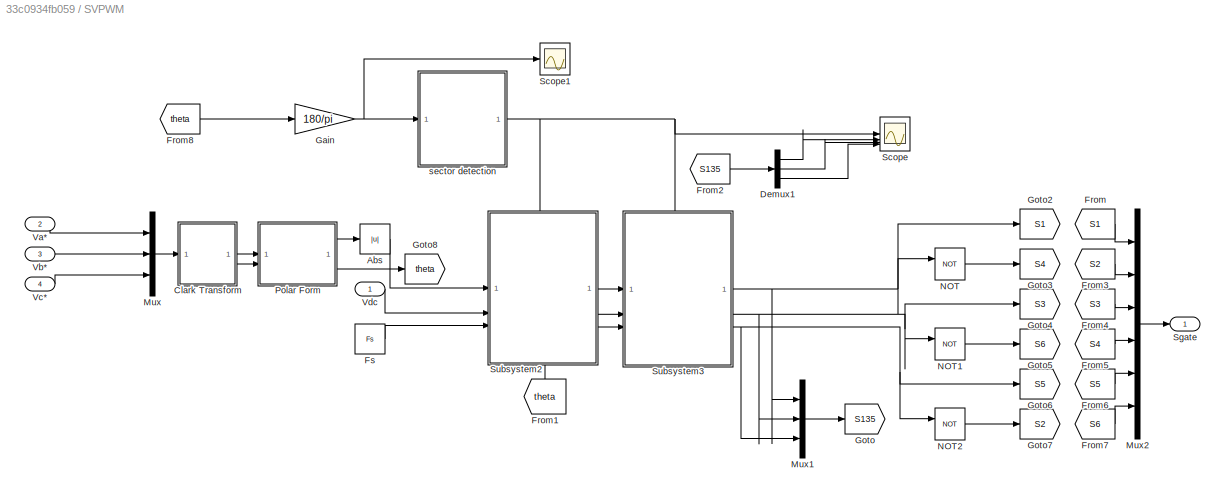
BLOCK [SubSystem] SVPWM
BLOCK [Abs] SVPWM/Abs
  SaturateOnIntegerOverflow = off
BLOCK [SubSystem] SVPWM/Clark Transform 
BLOCK [Fcn] SVPWM/Clark Transform /Fcn
  Expr = (u(1)-1/2*u(2)-1/2*u(3))
BLOCK [Fcn] SVPWM/Clark Transform /Fcn1
  Expr = (0*u(1)+sqrt(3)/2*u(2)-sqrt(3)/2*u(3))
BLOCK [Inport] SVPWM/Clark Transform /Vabc 
BLOCK [Outport] SVPWM/Clark Transform /Vα
  VectorParamsAs1DForOutWhenUnconnected = off
BLOCK [Outport] SVPWM/Clark Transform /Vβ
  Port = 2
  VectorParamsAs1DForOutWhenUnconnected = off
BLOCK [Demux] SVPWM/Demux1
  Outputs = 3
BLOCK [From] SVPWM/From
  GotoTag = S1
BLOCK [From] SVPWM/From1
  GotoTag = theta
  NameLocation = right
BLOCK [From] SVPWM/From2
  GotoTag = S135
BLOCK [From] SVPWM/From3
  GotoTag = S2
BLOCK [From] SVPWM/From4
  GotoTag = S3
BLOCK [From] SVPWM/From5
  GotoTag = S4
BLOCK [From] SVPWM/From6
  GotoTag = S5
BLOCK [From] SVPWM/From7
  GotoTag = S6
BLOCK [From] SVPWM/From8
  GotoTag = theta
BLOCK [Constant] SVPWM/Fs
  Value = Fs
BLOCK [Gain] SVPWM/Gain
  Gain = 180/pi
BLOCK [Goto] SVPWM/Goto
  GotoTag = S135
BLOCK [Goto] SVPWM/Goto2
  GotoTag = S1
BLOCK [Goto] SVPWM/Goto3
  GotoTag = S4
BLOCK [Goto] SVPWM/Goto4
  GotoTag = S3
BLOCK [Goto] SVPWM/Goto5
  GotoTag = S6
BLOCK [Goto] SVPWM/Goto6
  GotoTag = S5
BLOCK [Goto] SVPWM/Goto7
  GotoTag = S2
BLOCK [Goto] SVPWM/Goto8
  GotoTag = theta
BLOCK [Mux] SVPWM/Mux
  DisplayOption = bar
  Inputs = 3
BLOCK [Mux] SVPWM/Mux1
  DisplayOption = bar
  Inputs = 3
BLOCK [Mux] SVPWM/Mux2
  DisplayOption = bar
  Inputs = 6
BLOCK [Logic] SVPWM/NOT
  AllPortsSameDT = off
  IconShape = distinctive
  Operator = NOT
  OutDataTypeStr = boolean
BLOCK [Logic] SVPWM/NOT1
  AllPortsSameDT = off
  IconShape = distinctive
  Operator = NOT
  OutDataTypeStr = boolean
BLOCK [Logic] SVPWM/NOT2
  AllPortsSameDT = off
  IconShape = distinctive
  Operator = NOT
  OutDataTypeStr = boolean
BLOCK [SubSystem] SVPWM/Polar Form 
BLOCK [Sum] SVPWM/Polar Form /Add
  IconShape = rectangular
BLOCK [Constant] SVPWM/Polar Form /Constant
  Value = 2*pi
BLOCK [Fcn] SVPWM/Polar Form /Fcn2
  Expr = atan2(u(2),u(1))
BLOCK [Fcn] SVPWM/Polar Form /Fcn3
  Expr = sqrt(u(1)^2+u(2)^2)
BLOCK [Mux] SVPWM/Polar Form /Mux1
  DisplayOption = bar
  Inputs = 2
BLOCK [Switch] SVPWM/Polar Form /Switch
  Criteria = u2 > Threshold
  InputSameDT = off
  SaturateOnIntegerOverflow = off
BLOCK [Inport] SVPWM/Polar Form /Valfa
BLOCK [Inport] SVPWM/Polar Form /Vbeta
  Port = 2
BLOCK [Outport] SVPWM/Polar Form /Vref
  VectorParamsAs1DForOutWhenUnconnected = off
BLOCK [Outport] SVPWM/Polar Form /angle
  Port = 2
  VectorParamsAs1DForOutWhenUnconnected = off
BLOCK [Scope] SVPWM/Scope
  Floating = off
  NumInputPorts = 4
  ScopeSpecificationString = Simulink.scopes.TimeScopeBlockCfg('CurrentConfiguration', extmgr.ConfigurationSet(extmgr.Configuration('Core','General UI',true),extmgr.Configuration('Core','Source UI',true),extmgr.Configuration('Sources','WiredSimulink',true,'DataLoggingVariableName','ScopeData3'),extmgr.Configuration('Visuals','Time Domain',true,'SerializedDisplays',{struct('MinYLimReal','-0.75','MaxYLimReal','6.75','YLabelReal...<+1488ch>
BLOCK [Scope] SVPWM/Scope1
  Floating = off
  NumInputPorts = 1
  ScopeSpecificationString = Simulink.scopes.TimeScopeBlockCfg('CurrentConfiguration', extmgr.ConfigurationSet(extmgr.Configuration('Core','General UI',true),extmgr.Configuration('Core','Source UI',true),extmgr.Configuration('Sources','WiredSimulink',true,'DataLoggingVariableName','ScopeData2'),extmgr.Configuration('Visuals','Time Domain',true,'SerializedDisplays',{struct('MinYLimReal','-45.00000','MaxYLimReal','405.00000','Y...<+1392ch>
BLOCK [Outport] SVPWM/Sgate
BLOCK [SubSystem] SVPWM/Subsystem2
  PortSchema = {"entries":[{"content":{"sides":[{"content":{"connectorIds":["In1","In2","In3"]},"type":"ConnectorPlacement.EquallySpacedRectSide","uuid":"13f95eee-8106-4f2d-b5f9-665b5c53ca49"},{"content":{"connectorIds":["Out1","Out2","Out3"],"side":"RIGHT"},"type":"ConnectorPlacement.EquallySpacedRectSide","uuid":"3e078310-26cc-4d9c-be70-8da9dd20e061"},{"content":{"connectorIds":["In4"],"side":"TOP"},"type":"Co...<+420ch>
BLOCK [Inport] SVPWM/Subsystem2/ θ
  Port = 5
BLOCK [Constant] SVPWM/Subsystem2/Constant
  Value = pi/3
BLOCK [Constant] SVPWM/Subsystem2/Constant1
BLOCK [Product] SVPWM/Subsystem2/Divide
  Inputs = */
BLOCK [Product] SVPWM/Subsystem2/Divide1
  Inputs = */
BLOCK [From] SVPWM/Subsystem2/From
  GotoTag = thetaPrime
BLOCK [From] SVPWM/Subsystem2/From1
  GotoTag = thetaPrime
BLOCK [Inport] SVPWM/Subsystem2/Fs
  Port = 3
BLOCK [Gain] SVPWM/Subsystem2/Gain
  Gain = sqrt(3)
BLOCK [Goto] SVPWM/Subsystem2/Goto
  GotoTag = thetaPrime
BLOCK [Product] SVPWM/Subsystem2/Product
BLOCK [Product] SVPWM/Subsystem2/Product1
BLOCK [Product] SVPWM/Subsystem2/Product2
BLOCK [Trigonometry] SVPWM/Subsystem2/Sin
BLOCK [Trigonometry] SVPWM/Subsystem2/Sin1
BLOCK [SubSystem] SVPWM/Subsystem2/Subsystem
BLOCK [Constant] SVPWM/Subsystem2/Subsystem/Constant
BLOCK [Constant] SVPWM/Subsystem2/Subsystem/Constant1
  Value = pi/3
BLOCK [Product] SVPWM/Subsystem2/Subsystem/Product
BLOCK [Sum] SVPWM/Subsystem2/Subsystem/Subtract
  IconShape = rectangular
  Inputs = +-
BLOCK [Sum] SVPWM/Subsystem2/Subsystem/Subtract1
  IconShape = rectangular
  Inputs = +-
BLOCK [Inport] SVPWM/Subsystem2/Subsystem/sec
  Port = 2
BLOCK [Inport] SVPWM/Subsystem2/Subsystem/θ
BLOCK [Outport] SVPWM/Subsystem2/Subsystem/θ`
BLOCK [Sum] SVPWM/Subsystem2/Subtract
  IconShape = rectangular
  Inputs = +-
BLOCK [Sum] SVPWM/Subsystem2/Subtract1
  IconShape = rectangular
  Inputs = --+
BLOCK [Outport] SVPWM/Subsystem2/T0
  Port = 3
BLOCK [Outport] SVPWM/Subsystem2/T1
BLOCK [Outport] SVPWM/Subsystem2/T2
  Port = 2
BLOCK [Inport] SVPWM/Subsystem2/Vdc
  Port = 2
BLOCK [Inport] SVPWM/Subsystem2/sec
  Port = 4
BLOCK [Inport] SVPWM/Subsystem2/|Vr|
BLOCK [SubSystem] SVPWM/Subsystem3
  PortSchema = {"entries":[{"content":{"sides":[{"content":{"connectorIds":["In1","In2","In3"]},"type":"ConnectorPlacement.EquallySpacedRectSide","uuid":"6c42d831-0426-4967-81f5-911cdfb3d9a5"},{"content":{"connectorIds":["Out1","Out2","Out3"],"side":"RIGHT"},"type":"ConnectorPlacement.EquallySpacedRectSide","uuid":"75f77ef2-8b2a-4026-a5e0-70e2e431df99"},{"content":{"connectorIds":["In4"],"side":"TOP"},"type":"Co...<+397ch>
BLOCK [If] SVPWM/Subsystem3/If
  IfExpression = u1 == 1
BLOCK [SubSystem] SVPWM/Subsystem3/If Action Subsystem
  TreatAsAtomicUnit = on
BLOCK [ActionPort] SVPWM/Subsystem3/If Action Subsystem/Action Port
  ActionPortLabel = else
BLOCK [Gain] SVPWM/Subsystem3/If Action Subsystem/Gain
  Gain = .5
BLOCK [RelationalOperator] SVPWM/Subsystem3/If Action Subsystem/GreaterThan
  InputSameDT = off
  OutDataTypeStr = boolean
  RndMeth = Simplest
BLOCK [RelationalOperator] SVPWM/Subsystem3/If Action Subsystem/GreaterThan1
  InputSameDT = off
  OutDataTypeStr = boolean
  RndMeth = Simplest
BLOCK [RelationalOperator] SVPWM/Subsystem3/If Action Subsystem/GreaterThan2
  InputSameDT = off
  OutDataTypeStr = boolean
  RndMeth = Simplest
BLOCK [MultiPortSwitch] SVPWM/Subsystem3/If Action Subsystem/Multiport Switch
  DataPortIndices = {[1,6],2,5,[3,4]}
  DataPortOrder = Specify indices
  InputSameDT = off
  SaturateOnIntegerOverflow = off
BLOCK [MultiPortSwitch] SVPWM/Subsystem3/If Action Subsystem/Multiport Switch1
  DataPortIndices = {[2,3],1,4,[5,6]}
  DataPortOrder = Specify indices
  InputSameDT = off
  SaturateOnIntegerOverflow = off
BLOCK [MultiPortSwitch] SVPWM/Subsystem3/If Action Subsystem/Multiport Switch2
  DataPortIndices = {[4,5],3,6,[1,2]}
  DataPortOrder = Specify indices
  InputSameDT = off
  SaturateOnIntegerOverflow = off
BLOCK [Reference] SVPWM/Subsystem3/If Action Subsystem/Repeating Sequence  REF=simulink/Sources/Repeating
Sequence
  SourceBlock = simulink/Sources/Repeating\nSequence
  SourceType = Repeating table
BLOCK [Outport] SVPWM/Subsystem3/If Action Subsystem/S1
BLOCK [Outport] SVPWM/Subsystem3/If Action Subsystem/S3
  Port = 2
BLOCK [Outport] SVPWM/Subsystem3/If Action Subsystem/S5
  Port = 3
BLOCK [Scope] SVPWM/Subsystem3/If Action Subsystem/Scope
  Floating = off
  NumInputPorts = 4
  ScopeSpecificationString = Simulink.scopes.TimeScopeBlockCfg('CurrentConfiguration', extmgr.ConfigurationSet(extmgr.Configuration('Core','General UI',true),extmgr.Configuration('Core','Source UI',true),extmgr.Configuration('Sources','WiredSimulink',true,'DataLoggingVariableName','ScopeData1'),extmgr.Configuration('Visuals','Time Domain',true,'SerializedDisplays',{struct('MinYLimReal','-0.00215','MaxYLimReal','0.00225','YLab...<+1534ch>
BLOCK [Inport] SVPWM/Subsystem3/If Action Subsystem/T0
  Port = 3
BLOCK [Inport] SVPWM/Subsystem3/If Action Subsystem/T1
BLOCK [Sum] SVPWM/Subsystem3/If Action Subsystem/T1+T0//2
  IconShape = rectangular
BLOCK [Sum] SVPWM/Subsystem3/If Action Subsystem/T1+T2+T0//2
  IconShape = rectangular
  Inputs = +++
BLOCK [Inport] SVPWM/Subsystem3/If Action Subsystem/T2
  Port = 2
BLOCK [Sum] SVPWM/Subsystem3/If Action Subsystem/T2+T0//2
  IconShape = rectangular
BLOCK [Inport] SVPWM/Subsystem3/If Action Subsystem/sec
  Port = 4
BLOCK [ManualSwitch] SVPWM/Subsystem3/Manual Switch
BLOCK [Merge] SVPWM/Subsystem3/Merge
BLOCK [Merge] SVPWM/Subsystem3/Merge1
BLOCK [Merge] SVPWM/Subsystem3/Merge2
BLOCK [Outport] SVPWM/Subsystem3/S1
BLOCK [Outport] SVPWM/Subsystem3/S3
  Port = 2
BLOCK [Outport] SVPWM/Subsystem3/S5
  Port = 3
BLOCK [SubSystem] SVPWM/Subsystem3/Subsystem
BLOCK [ActionPort] SVPWM/Subsystem3/Subsystem/Action Port
  ActionPortLabel = if(u1 == 1)
BLOCK [DataTypeConversion] SVPWM/Subsystem3/Subsystem/Cast To Boolean
  OutDataTypeStr = boolean
  RndMeth = Floor
  SaturateOnIntegerOverflow = off
BLOCK [DataTypeConversion] SVPWM/Subsystem3/Subsystem/Cast To Boolean1
  OutDataTypeStr = boolean
  RndMeth = Floor
  SaturateOnIntegerOverflow = off
BLOCK [DataTypeConversion] SVPWM/Subsystem3/Subsystem/Cast To Boolean2
  OutDataTypeStr = boolean
  RndMeth = Floor
  SaturateOnIntegerOverflow = off
BLOCK [SubSystem] SVPWM/Subsystem3/Subsystem/MATLAB Function
  ErrorFcn = Stateflow.Translate.translate
  LibrarySourceBlock = simulink/User-Defined\nFunctions/MATLAB Function
  PermitHierarchicalResolution = ExplicitOnly
  SFBlockType = MATLAB Function
  TreatAsAtomicUnit = on
BLOCK [Demux] SVPWM/Subsystem3/Subsystem/MATLAB Function/ Demux 
  Outputs = 1
BLOCK [S-Function] SVPWM/Subsystem3/Subsystem/MATLAB Function/ SFunction 
  EnableBusSupport = on
  FunctionName = sf_sfun
  PortCounts = [5 4]
  SFcnIsStateOwnerBlock = off
  SFunctionDeploymentMode = off
  Tag = Stateflow S-Function 5
BLOCK [Terminator] SVPWM/Subsystem3/Subsystem/MATLAB Function/ Terminator 
BLOCK [Outport] SVPWM/Subsystem3/Subsystem/MATLAB Function/S1
BLOCK [Outport] SVPWM/Subsystem3/Subsystem/MATLAB Function/S3
  Port = 2
BLOCK [Outport] SVPWM/Subsystem3/Subsystem/MATLAB Function/S5
  Port = 3
BLOCK [Inport] SVPWM/Subsystem3/Subsystem/MATLAB Function/T0
  Port = 3
BLOCK [Inport] SVPWM/Subsystem3/Subsystem/MATLAB Function/T1
BLOCK [Inport] SVPWM/Subsystem3/Subsystem/MATLAB Function/T2
  Port = 2
BLOCK [Inport] SVPWM/Subsystem3/Subsystem/MATLAB Function/Ts
  Port = 5
BLOCK [Inport] SVPWM/Subsystem3/Subsystem/MATLAB Function/sec
  Port = 4
BLOCK [Reference] SVPWM/Subsystem3/Subsystem/Repeating Sequence  REF=simulink/Sources/Repeating
Sequence
  SourceBlock = simulink/Sources/Repeating\nSequence
  SourceType = Repeating table
BLOCK [Outport] SVPWM/Subsystem3/Subsystem/S1
BLOCK [Outport] SVPWM/Subsystem3/Subsystem/S3
  Port = 2
BLOCK [Outport] SVPWM/Subsystem3/Subsystem/S5
  Port = 3
BLOCK [Scope] SVPWM/Subsystem3/Subsystem/Scope
  Floating = off
  NumInputPorts = 1
  ScopeSpecificationString = Simulink.scopes.TimeScopeBlockCfg('CurrentConfiguration', extmgr.ConfigurationSet(extmgr.Configuration('Core','General UI',true),extmgr.Configuration('Core','Source UI',true),extmgr.Configuration('Sources','WiredSimulink',true,'DataLoggingVariableName','ScopeData1'),extmgr.Configuration('Visuals','Time Domain',true,'SerializedDisplays',{struct('MinYLimReal','-0.00002','MaxYLimReal','0.00022','YLab...<+1409ch>
BLOCK [Inport] SVPWM/Subsystem3/Subsystem/T0
  Port = 3
BLOCK [Inport] SVPWM/Subsystem3/Subsystem/T1
BLOCK [Inport] SVPWM/Subsystem3/Subsystem/T2
  Port = 2
BLOCK [Inport] SVPWM/Subsystem3/Subsystem/sec
  Port = 4
BLOCK [Inport] SVPWM/Subsystem3/T0
  Port = 3
BLOCK [Inport] SVPWM/Subsystem3/T1
BLOCK [Inport] SVPWM/Subsystem3/T2
  Port = 2
BLOCK [Constant] SVPWM/Subsystem3/logic based
BLOCK [Inport] SVPWM/Subsystem3/sec
  Port = 4
BLOCK [Constant] SVPWM/Subsystem3/time Vs carrier
  Value = 0
BLOCK [Inport] SVPWM/Va*
  Port = 2
BLOCK [Inport] SVPWM/Vb*
  Port = 3
BLOCK [Inport] SVPWM/Vc*
  Port = 4
BLOCK [Inport] SVPWM/Vdc
BLOCK [SubSystem] SVPWM/sector detection
  ErrorFcn = Stateflow.Translate.translate
  LibrarySourceBlock = simulink/User-Defined\nFunctions/MATLAB Function
  PermitHierarchicalResolution = ExplicitOnly
  SFBlockType = MATLAB Function
  TreatAsAtomicUnit = on
BLOCK [Demux] SVPWM/sector detection/ Demux 
  Outputs = 1
BLOCK [S-Function] SVPWM/sector detection/ SFunction 
  EnableBusSupport = on
  FunctionName = sf_sfun
  PortCounts = [1 2]
  SFcnIsStateOwnerBlock = off
  SFunctionDeploymentMode = off
  Tag = Stateflow S-Function 6
BLOCK [Terminator] SVPWM/sector detection/ Terminator 
BLOCK [Outport] SVPWM/sector detection/sec
BLOCK [Inport] SVPWM/sector detection/theta
BLOCK [Scope] Scope
  Floating = off
  NumInputPorts = 1
  ScopeSpecificationString = Simulink.scopes.TimeScopeBlockCfg('CurrentConfiguration', extmgr.ConfigurationSet(extmgr.Configuration('Core','General UI',true),extmgr.Configuration('Core','Source UI',true),extmgr.Configuration('Sources','WiredSimulink',true,'DataLoggingVariableName','ScopeData3'),extmgr.Configuration('Visuals','Time Domain',true,'SerializedDisplays',{struct('MinYLimReal','-2945.3579','MaxYLimReal','327.26199','...<+1452ch>
BLOCK [Scope] Scope1
  Floating = off
  NumInputPorts = 3
  ScopeSpecificationString = Simulink.scopes.TimeScopeBlockCfg('CurrentConfiguration', extmgr.ConfigurationSet(extmgr.Configuration('Core','General UI',true),extmgr.Configuration('Core','Source UI',true),extmgr.Configuration('Sources','WiredSimulink',true,'DataLoggingVariableName','ScopeData8'),extmgr.Configuration('Visuals','Time Domain',true,'SerializedDisplays',{struct('MinYLimReal','-363.39747','MaxYLimReal','3263.32301',...<+1838ch>
BLOCK [Scope] Scope10
  Floating = off
  NumInputPorts = 1
  ScopeSpecificationString = Simulink.scopes.TimeScopeBlockCfg('CurrentConfiguration', extmgr.ConfigurationSet(extmgr.Configuration('Core','General UI',true),extmgr.Configuration('Core','Source UI',true),extmgr.Configuration('Sources','WiredSimulink',true,'DataLoggingVariableName','ScopeData2'),extmgr.Configuration('Visuals','Time Domain',true,'SerializedDisplays',{struct('MinYLimReal','-1.1084','MaxYLimReal','9.97562','YLabe...<+1360ch>
BLOCK [Scope] Scope2
  Floating = off
  NumInputPorts = 1
  ScopeSpecificationString = Simulink.scopes.TimeScopeBlockCfg('CurrentConfiguration', extmgr.ConfigurationSet(extmgr.Configuration('Core','General UI',true),extmgr.Configuration('Core','Source UI',true),extmgr.Configuration('Sources','WiredSimulink',true,'DataLoggingVariableName','ScopeData1'),extmgr.Configuration('Visuals','Time Domain',true,'SerializedDisplays',{struct('MinYLimReal','-11.54243','MaxYLimReal','11.60171','YL...<+1397ch>
BLOCK [Scope] Scope3
  Floating = off
  NumInputPorts = 1
  ScopeSpecificationString = Simulink.scopes.TimeScopeBlockCfg('CurrentConfiguration', extmgr.ConfigurationSet(extmgr.Configuration('Core','General UI',true),extmgr.Configuration('Core','Source UI',true),extmgr.Configuration('Sources','WiredSimulink',true,'DataLoggingVariableName','ScopeData2'),extmgr.Configuration('Visuals','Time Domain',true,'SerializedDisplays',{struct('MinYLimReal','-50.03913','MaxYLimReal','165.32373','Y...<+1407ch>
BLOCK [Scope] Scope4
  Floating = off
  NumInputPorts = 1
  ScopeSpecificationString = Simulink.scopes.TimeScopeBlockCfg('CurrentConfiguration', extmgr.ConfigurationSet(extmgr.Configuration('Core','General UI',true),extmgr.Configuration('Core','Source UI',true),extmgr.Configuration('Sources','WiredSimulink',true,'DataLoggingVariableName','ScopeData6'),extmgr.Configuration('Visuals','Time Domain',true,'SerializedDisplays',{struct('MinYLimReal','-0.20433','MaxYLimReal','0.02024','YLab...<+1463ch>
BLOCK [Scope] Scope5
  Floating = off
  NumInputPorts = 1
  ScopeSpecificationString = Simulink.scopes.TimeScopeBlockCfg('CurrentConfiguration', extmgr.ConfigurationSet(extmgr.Configuration('Core','General UI',true),extmgr.Configuration('Core','Source UI',true),extmgr.Configuration('Sources','WiredSimulink',true,'DataLoggingVariableName','ScopeData7'),extmgr.Configuration('Visuals','Time Domain',true,'SerializedDisplays',{struct('MinYLimReal','-1.39937','MaxYLimReal','12.59431','YLa...<+1407ch>
BLOCK [Scope] Scope6
  Floating = off
  NumInputPorts = 1
  ScopeSpecificationString = Simulink.scopes.TimeScopeBlockCfg('CurrentConfiguration', extmgr.ConfigurationSet(extmgr.Configuration('Core','General UI',true),extmgr.Configuration('Core','Source UI',true),extmgr.Configuration('Sources','WiredSimulink',true,'DataLoggingVariableName','ScopeData3'),extmgr.Configuration('Visuals','Time Domain',true,'SerializedDisplays',{struct('MinYLimReal','-1.40269','MaxYLimReal','12.62423','YLa...<+1467ch>
BLOCK [Scope] Scope7
  Floating = off
  NumInputPorts = 1
  ScopeSpecificationString = Simulink.scopes.TimeScopeBlockCfg('CurrentConfiguration', extmgr.ConfigurationSet(extmgr.Configuration('Core','General UI',true),extmgr.Configuration('Core','Source UI',true),extmgr.Configuration('Sources','WiredSimulink',true,'DataLoggingVariableName','ScopeData4'),extmgr.Configuration('Visuals','Time Domain',true,'SerializedDisplays',{struct('MinYLimReal','-0.11979','MaxYLimReal','0.01331','YLab...<+1463ch>
BLOCK [Scope] Scope8
  Floating = off
  NumInputPorts = 1
  ScopeSpecificationString = Simulink.scopes.TimeScopeBlockCfg('CurrentConfiguration', extmgr.ConfigurationSet(extmgr.Configuration('Core','General UI',true),extmgr.Configuration('Core','Source UI',true),extmgr.Configuration('Sources','WiredSimulink',true,'DataLoggingVariableName','ScopeData5'),extmgr.Configuration('Visuals','Time Domain',true,'SerializedDisplays',{struct('MinYLimReal','-15.48261','MaxYLimReal','118.08374','Y...<+1424ch>
BLOCK [Scope] Scope9
  Floating = off
  NumInputPorts = 1
  ScopeSpecificationString = Simulink.scopes.TimeScopeBlockCfg('CurrentConfiguration', extmgr.ConfigurationSet(extmgr.Configuration('Core','General UI',true),extmgr.Configuration('Core','Source UI',true),extmgr.Configuration('Sources','WiredSimulink',true,'DataLoggingVariableName','ScopeData1'),extmgr.Configuration('Visuals','Time Domain',true,'SerializedDisplays',{struct('MinYLimReal','-0.0748','MaxYLimReal','0.00831','YLabe...<+1358ch>
BLOCK [Reference] Signal Editor  REF=SignalEditorBlockLib/Signal Editor
  LibrarySourceBlock = simulink/Sources/Signal Editor
  SourceBlock = SignalEditorBlockLib/Signal Editor
  SourceType = SignalEditor
  UserDataPersistent = on
BLOCK [Reference] Signal Editor1  REF=SignalEditorBlockLib/Signal Editor
  LibrarySourceBlock = simulink/Sources/Signal Editor
  SourceBlock = SignalEditorBlockLib/Signal Editor
  SourceType = SignalEditor
  UserDataPersistent = on
BLOCK [Sum] Subtract
  IconShape = rectangular
  Inputs = --
BLOCK [Sum] Sum
  Inputs = |+-
BLOCK [Sum] Sum1
  Inputs = |+-
BLOCK [Sum] Sum10
  Inputs = |+-
BLOCK [Sum] Sum11
  Inputs = |+-
BLOCK [Sum] Sum12
  Inputs = ||++-
BLOCK [Sum] Sum3
  Inputs = -+|
BLOCK [Sum] Sum7
  Inputs = |+-
BLOCK [Sum] Sum8
  Inputs = ++|
BLOCK [Sum] Sum9
  Inputs = |+-
BLOCK [TransferFcn] Transfer Fcn
  Denominator = [.03 1]
BLOCK [TransferFcn] Transfer Fcn4
  Denominator = [Lqs Rs]
BLOCK [TransferFcn] Transfer Fcn5
  Denominator = [J B]
BLOCK [TransferFcn] Transfer Fcn6
  Denominator = [Lds Rs]
BLOCK [Reference] abc to Alpha-Beta-Zero1  REF=spsabctoAlphaBetaZeroLib/abc to
Alpha-Beta-Zero
  LibrarySourceBlock = sps_lib/Control/abc to\nAlpha-Beta-Zero
  SourceBlock = spsabctoAlphaBetaZeroLib/abc to\nAlpha-Beta-Zero
  SourceType = abc to Alpha-Beta-Zero Transformation
BLOCK [SubSystem] abc to dq
BLOCK [Demux] abc to dq/Demux
  Outputs = 3
BLOCK [Fcn] abc to dq/Fcn
  Expr = u(1)*cos(u(4))+u(2)*sin(u(4))
BLOCK [Fcn] abc to dq/Fcn1
  Expr = -u(1)*sin(u(4))+u(2)*cos(u(4))
BLOCK [Mux] abc to dq/Mux
  DisplayOption = bar
BLOCK [Mux] abc to dq/Mux1
  DisplayOption = bar
  Inputs = 2
BLOCK [Outport] abc to dq/dq
BLOCK [Inport] abc to dq/theta
  Port = 2
BLOCK [Inport] abc to dq/αβ0
BLOCK [SubSystem] dq to abc
BLOCK [Demux] dq to abc/Demux
  Outputs = 3
BLOCK [Fcn] dq to abc/Fcn
  Expr = u(1)*cos(u(4))-u(2)*sin(u(4))+u(3)
BLOCK [Fcn] dq to abc/Fcn1
  Expr = u(1)*cos(u(4)-(2*pi/3))-u(2)*sin(u(4)-(2*pi/3))+u(3)
BLOCK [Fcn] dq to abc/Fcn3
  Expr = u(1)*cos(u(4)+(2*pi/3))-u(2)*sin(u(4)+(2*pi/3))+u(3)
BLOCK [Mux] dq to abc/Mux
  DisplayOption = bar
BLOCK [Mux] dq to abc/Mux1
  DisplayOption = bar
  Inputs = 3
BLOCK [Outport] dq to abc/abc
BLOCK [Inport] dq to abc/dq
BLOCK [Inport] dq to abc/theta
  Port = 2
BLOCK [Reference] powergui1  REF=spspowerguiLib/powergui
  Priority = 1
  SourceBlock = spspowerguiLib/powergui
  SourceType = PSB option menu block
BLOCK [SubSystem] two level inverter
BLOCK [PMIOPort] two level inverter/+Vdc
  Side = Left
BLOCK [PMIOPort] two level inverter/-Vdc
  Port = 2
  Side = Left
BLOCK [PMIOPort] two level inverter/A
  Port = 3
  Side = Right
BLOCK [PMIOPort] two level inverter/B
  Port = 4
  Side = Right
BLOCK [PMIOPort] two level inverter/C
  Port = 5
  Side = Right
BLOCK [Demux] two level inverter/Demux
  Outputs = 6
BLOCK [From] two level inverter/From
  GotoTag = S1
BLOCK [From] two level inverter/From1
  GotoTag = S3
BLOCK [From] two level inverter/From2
  GotoTag = S5
BLOCK [From] two level inverter/From3
  GotoTag = S4
BLOCK [From] two level inverter/From4
  GotoTag = S6
BLOCK [From] two level inverter/From5
  GotoTag = S2
BLOCK [Goto] two level inverter/Goto
  GotoTag = S1
BLOCK [Goto] two level inverter/Goto1
  GotoTag = S2
BLOCK [Goto] two level inverter/Goto2
  GotoTag = S3
BLOCK [Goto] two level inverter/Goto3
  GotoTag = S6
BLOCK [Goto] two level inverter/Goto4
  GotoTag = S4
BLOCK [Goto] two level inverter/Goto5
  GotoTag = S5
BLOCK [Reference] two level inverter/Mosfet  REF=spsMosfetLib/Mosfet
  LibrarySourceBlock = sps_lib/Power Electronics/Mosfet
  NameLocation = right
  SourceBlock = spsMosfetLib/Mosfet
  SourceType = Mosfet
BLOCK [Reference] two level inverter/Mosfet1  REF=spsMosfetLib/Mosfet
  LibrarySourceBlock = sps_lib/Power Electronics/Mosfet
  NameLocation = right
  SourceBlock = spsMosfetLib/Mosfet
  SourceType = Mosfet
BLOCK [Reference] two level inverter/Mosfet2  REF=spsMosfetLib/Mosfet
  LibrarySourceBlock = sps_lib/Power Electronics/Mosfet
  NameLocation = right
  SourceBlock = spsMosfetLib/Mosfet
  SourceType = Mosfet
BLOCK [Reference] two level inverter/Mosfet3  REF=spsMosfetLib/Mosfet
  LibrarySourceBlock = sps_lib/Power Electronics/Mosfet
  NameLocation = right
  SourceBlock = spsMosfetLib/Mosfet
  SourceType = Mosfet
BLOCK [Reference] two level inverter/Mosfet4  REF=spsMosfetLib/Mosfet
  LibrarySourceBlock = sps_lib/Power Electronics/Mosfet
  NameLocation = right
  SourceBlock = spsMosfetLib/Mosfet
  SourceType = Mosfet
BLOCK [Reference] two level inverter/Mosfet5  REF=spsMosfetLib/Mosfet
  LibrarySourceBlock = sps_lib/Power Electronics/Mosfet
  NameLocation = right
  SourceBlock = spsMosfetLib/Mosfet
  SourceType = Mosfet
BLOCK [Inport] two level inverter/g
ANNOTATION (root): Inputs
ANNOTATION MTPA & Field Weakening2: Generating d-q current axes according to MTPA
ANNOTATION MTPA & Field Weakening3: Generating d-q current axes according to MTPA
NET Bus Selector:1 -> Gain1:1, Gain:1, Goto7:1
LINE Compensation Network/Add:1 -> Compensation Network/Vds_com:1
LINE Compensation Network/Gain1:1 -> Compensation Network/Add:2
LINE Compensation Network/Gain2:1 -> Compensation Network/Add:1
LINE Compensation Network/Gain:1 -> Compensation Network/Vqs_com:1
LINE Compensation Network/Ids*:1 -> Compensation Network/Product1:1
LINE Compensation Network/Iqs*:1 -> Compensation Network/Product:2
LINE Compensation Network/Product1:1 -> Compensation Network/Gain1:1
LINE Compensation Network/Product:1 -> Compensation Network/Gain:1
NET Compensation Network/Wr:1 -> Compensation Network/Gain2:1, Compensation Network/Product1:2, Compensation Network/Product:1
LINE Compensation Network:1 -> Sum7:2
LINE Compensation Network:2 -> Sum8:1
LINE Constant1:1 -> Rem:2
LINE Constant2:1 -> Mux1:3
LINE Constant3:1 -> SVPWM:1
LINE Constant4:1 -> Rem1:2
LINE Constant:1 -> Goto3:1
LINE Current Measurement1:1 -> Goto1:1
LINE Current Measurement:1 -> Goto:1
LINE Demux1:1 -> Goto4:1
LINE Demux1:2 -> Goto5:1
LINE Demux:1 -> SVPWM:2
LINE Demux:2 -> SVPWM:3
LINE Demux:3 -> SVPWM:4
LINE From10:1 -> Integrator2:1
NET From11:1 -> Gain3:1, Sum1:1
LINE From12:1 -> Compensation Network:2
LINE From14:1 -> Gain5:1
NET From15:1 -> Gain4:1, Sum9:1
LINE From16:1 -> Sum12:3
NET From1:1 -> Mux2:1, Subtract:1
NET From2:1 -> Mux2:2, Subtract:2
LINE From3:1 -> Permanent Magnet Synchronous Machine:1
LINE From4:1 -> Integrator1:1
NET From5:1 -> Compensation Network:1, Sum:2
NET From6:1 -> Compensation Network:3, Sum3:1
LINE From9:1 -> Sum1:2
LINE Gain10:1 -> Sum12:2
LINE Gain1:1 -> Goto2:1
LINE Gain2:1 -> Transfer Fcn:1
LINE Gain3:1 -> MTPA & Field Weakening2:1
LINE Gain4:1 -> MTPA & Field Weakening3:1
LINE Gain5:1 -> Scope1:2
LINE Gain8:1 -> Scope1:1
LINE Gain9:1 -> Sum12:1
LINE Gain:1 -> Scope:1
LINE Integrator1:1 -> Rem:1
LINE Integrator2:1 -> Rem1:1
LINE MTPA & Field Weakening2/ We_ref1:1 -> MTPA & Field Weakening2/Field-weakeing:1
LINE MTPA & Field Weakening2/ We_ref:1 -> MTPA & Field Weakening2/If:2
LINE MTPA & Field Weakening2/Add1:1 -> MTPA & Field Weakening2/Sqrt:1
LINE MTPA & Field Weakening2/Add:1 -> MTPA & Field Weakening2/Divide:1
LINE MTPA & Field Weakening2/Constant1:1 -> MTPA & Field Weakening2/Divide:2
LINE MTPA & Field Weakening2/Constant2:1 -> MTPA & Field Weakening2/Scope:2
NET MTPA & Field Weakening2/Constant:1 -> MTPA & Field Weakening2/Add:1, MTPA & Field Weakening2/Square:1
NET MTPA & Field Weakening2/Divide:1 -> MTPA & Field Weakening2/Saturation:1, MTPA & Field Weakening2/Square2:1
LINE MTPA & Field Weakening2/Field-weakeing/Constant1:1 -> MTPA & Field Weakening2/Field-weakeing/If:1
LINE MTPA & Field Weakening2/Field-weakeing/Constant:1 -> MTPA & Field Weakening2/Field-weakeing/If:2
LINE MTPA & Field Weakening2/Field-weakeing/If Action Subsystem/Add1:1 -> MTPA & Field Weakening2/Field-weakeing/If Action Subsystem/Gain:1
LINE MTPA & Field Weakening2/Field-weakeing/If Action Subsystem/Add:1 -> MTPA & Field Weakening2/Field-weakeing/If Action Subsystem/Sqrt1:1
NET MTPA & Field Weakening2/Field-weakeing/If Action Subsystem/Constant1:1 -> MTPA & Field Weakening2/Field-weakeing/If Action Subsystem/Square2:1, MTPA & Field Weakening2/Field-weakeing/If Action Subsystem/Subtract1:1
LINE MTPA & Field Weakening2/Field-weakeing/If Action Subsystem/Constant2:1 -> MTPA & Field Weakening2/Field-weakeing/If Action Subsystem/Square3:1
LINE MTPA & Field Weakening2/Field-weakeing/If Action Subsystem/Divide:1 -> MTPA & Field Weakening2/Field-weakeing/If Action Subsystem/Square5:1
LINE MTPA & Field Weakening2/Field-weakeing/If Action Subsystem/Gain1:1 -> MTPA & Field Weakening2/Field-weakeing/If Action Subsystem/Square4:1
LINE MTPA & Field Weakening2/Field-weakeing/If Action Subsystem/Gain:1 -> MTPA & Field Weakening2/Field-weakeing/If Action Subsystem/Add:2
LINE MTPA & Field Weakening2/Field-weakeing/If Action Subsystem/Is*1:1 -> MTPA & Field Weakening2/Field-weakeing/If Action Subsystem/Sign:1
NET MTPA & Field Weakening2/Field-weakeing/If Action Subsystem/Is*:1 -> MTPA & Field Weakening2/Field-weakeing/If Action Subsystem/Gain1:1, MTPA & Field Weakening2/Field-weakeing/If Action Subsystem/Scope:1, MTPA & Field Weakening2/Field-weakeing/If Action Subsystem/Square1:1
LINE MTPA & Field Weakening2/Field-weakeing/If Action Subsystem/Product:1 -> MTPA & Field Weakening2/Field-weakeing/If Action Subsystem/Saturation1:1
NET MTPA & Field Weakening2/Field-weakeing/If Action Subsystem/Saturation1:1 -> MTPA & Field Weakening2/Field-weakeing/If Action Subsystem/Iqs:1, MTPA & Field Weakening2/Field-weakeing/If Action Subsystem/Scope1:1
NET MTPA & Field Weakening2/Field-weakeing/If Action Subsystem/Saturation:1 -> MTPA & Field Weakening2/Field-weakeing/If Action Subsystem/Ids:1, MTPA & Field Weakening2/Field-weakeing/If Action Subsystem/Scope2:1
LINE MTPA & Field Weakening2/Field-weakeing/If Action Subsystem/Sign:1 -> MTPA & Field Weakening2/Field-weakeing/If Action Subsystem/Product:2
LINE MTPA & Field Weakening2/Field-weakeing/If Action Subsystem/Sqrt1:1 -> MTPA & Field Weakening2/Field-weakeing/If Action Subsystem/Subtract1:2
LINE MTPA & Field Weakening2/Field-weakeing/If Action Subsystem/Sqrt:1 -> MTPA & Field Weakening2/Field-weakeing/If Action Subsystem/Product:1
LINE MTPA & Field Weakening2/Field-weakeing/If Action Subsystem/Square1:1 -> MTPA & Field Weakening2/Field-weakeing/If Action Subsystem/Subtract:2
LINE MTPA & Field Weakening2/Field-weakeing/If Action Subsystem/Square2:1 -> MTPA & Field Weakening2/Field-weakeing/If Action Subsystem/Add:1
LINE MTPA & Field Weakening2/Field-weakeing/If Action Subsystem/Square3:1 -> MTPA & Field Weakening2/Field-weakeing/If Action Subsystem/Add1:1
LINE MTPA & Field Weakening2/Field-weakeing/If Action Subsystem/Square4:1 -> MTPA & Field Weakening2/Field-weakeing/If Action Subsystem/Add1:3
LINE MTPA & Field Weakening2/Field-weakeing/If Action Subsystem/Square5:1 -> MTPA & Field Weakening2/Field-weakeing/If Action Subsystem/Add1:2
LINE MTPA & Field Weakening2/Field-weakeing/If Action Subsystem/Square:1 -> MTPA & Field Weakening2/Field-weakeing/If Action Subsystem/Subtract:1
NET MTPA & Field Weakening2/Field-weakeing/If Action Subsystem/Subtract1:1 -> MTPA & Field Weakening2/Field-weakeing/If Action Subsystem/Saturation:1, MTPA & Field Weakening2/Field-weakeing/If Action Subsystem/Square:1
LINE MTPA & Field Weakening2/Field-weakeing/If Action Subsystem/Subtract:1 -> MTPA & Field Weakening2/Field-weakeing/If Action Subsystem/Sqrt:1
LINE MTPA & Field Weakening2/Field-weakeing/If Action Subsystem/Vf:1 -> MTPA & Field Weakening2/Field-weakeing/If Action Subsystem/Divide:1
LINE MTPA & Field Weakening2/Field-weakeing/If Action Subsystem/We_ref:1 -> MTPA & Field Weakening2/Field-weakeing/If Action Subsystem/Divide:2
LINE MTPA & Field Weakening2/Field-weakeing/If Action Subsystem1/Add1:1 -> MTPA & Field Weakening2/Field-weakeing/If Action Subsystem1/Gain:1
LINE MTPA & Field Weakening2/Field-weakeing/If Action Subsystem1/Add:1 -> MTPA & Field Weakening2/Field-weakeing/If Action Subsystem1/Sqrt1:1
NET MTPA & Field Weakening2/Field-weakeing/If Action Subsystem1/Constant1:1 -> MTPA & Field Weakening2/Field-weakeing/If Action Subsystem1/Square2:1, MTPA & Field Weakening2/Field-weakeing/If Action Subsystem1/Subtract1:1
LINE MTPA & Field Weakening2/Field-weakeing/If Action Subsystem1/Constant2:1 -> MTPA & Field Weakening2/Field-weakeing/If Action Subsystem1/Square3:1
LINE MTPA & Field Weakening2/Field-weakeing/If Action Subsystem1/Constant3:1 -> MTPA & Field Weakening2/Field-weakeing/If Action Subsystem1/Divide:1
LINE MTPA & Field Weakening2/Field-weakeing/If Action Subsystem1/Divide:1 -> MTPA & Field Weakening2/Field-weakeing/If Action Subsystem1/Square5:1
LINE MTPA & Field Weakening2/Field-weakeing/If Action Subsystem1/Gain1:1 -> MTPA & Field Weakening2/Field-weakeing/If Action Subsystem1/Square4:1
LINE MTPA & Field Weakening2/Field-weakeing/If Action Subsystem1/Gain:1 -> MTPA & Field Weakening2/Field-weakeing/If Action Subsystem1/Add:2
NET MTPA & Field Weakening2/Field-weakeing/If Action Subsystem1/Is*:1 -> MTPA & Field Weakening2/Field-weakeing/If Action Subsystem1/Gain1:1, MTPA & Field Weakening2/Field-weakeing/If Action Subsystem1/Square1:1
LINE MTPA & Field Weakening2/Field-weakeing/If Action Subsystem1/Sqrt1:1 -> MTPA & Field Weakening2/Field-weakeing/If Action Subsystem1/Subtract1:2
LINE MTPA & Field Weakening2/Field-weakeing/If Action Subsystem1/Square1:1 -> MTPA & Field Weakening2/Field-weakeing/If Action Subsystem1/Subtract:2
LINE MTPA & Field Weakening2/Field-weakeing/If Action Subsystem1/Square2:1 -> MTPA & Field Weakening2/Field-weakeing/If Action Subsystem1/Add:1
LINE MTPA & Field Weakening2/Field-weakeing/If Action Subsystem1/Square3:1 -> MTPA & Field Weakening2/Field-weakeing/If Action Subsystem1/Add1:1
LINE MTPA & Field Weakening2/Field-weakeing/If Action Subsystem1/Square4:1 -> MTPA & Field Weakening2/Field-weakeing/If Action Subsystem1/Add1:3
LINE MTPA & Field Weakening2/Field-weakeing/If Action Subsystem1/Square5:1 -> MTPA & Field Weakening2/Field-weakeing/If Action Subsystem1/Add1:2
LINE MTPA & Field Weakening2/Field-weakeing/If Action Subsystem1/Square:1 -> MTPA & Field Weakening2/Field-weakeing/If Action Subsystem1/Subtract:1
NET MTPA & Field Weakening2/Field-weakeing/If Action Subsystem1/Subtract1:1 -> MTPA & Field Weakening2/Field-weakeing/If Action Subsystem1/Ids:1, MTPA & Field Weakening2/Field-weakeing/If Action Subsystem1/Square:1
LINE MTPA & Field Weakening2/Field-weakeing/If Action Subsystem1/Subtract:1 -> MTPA & Field Weakening2/Field-weakeing/If Action Subsystem1/Iqs:1
LINE MTPA & Field Weakening2/Field-weakeing/If Action Subsystem1/We_ref:1 -> MTPA & Field Weakening2/Field-weakeing/If Action Subsystem1/Divide:2
LINE MTPA & Field Weakening2/Field-weakeing/If Action Subsystem1:1 -> MTPA & Field Weakening2/Field-weakeing/Merge:2
LINE MTPA & Field Weakening2/Field-weakeing/If Action Subsystem1:2 -> MTPA & Field Weakening2/Field-weakeing/Merge1:2
LINE MTPA & Field Weakening2/Field-weakeing/If Action Subsystem:1 -> MTPA & Field Weakening2/Field-weakeing/Merge:1
LINE MTPA & Field Weakening2/Field-weakeing/If Action Subsystem:2 -> MTPA & Field Weakening2/Field-weakeing/Merge1:1
LINE MTPA & Field Weakening2/Field-weakeing/If:1 -> MTPA & Field Weakening2/Field-weakeing/If Action Subsystem:ifaction
LINE MTPA & Field Weakening2/Field-weakeing/If:2 -> MTPA & Field Weakening2/Field-weakeing/If Action Subsystem1:ifaction
NET MTPA & Field Weakening2/Field-weakeing/Is*:1 -> MTPA & Field Weakening2/Field-weakeing/If Action Subsystem1:2, MTPA & Field Weakening2/Field-weakeing/If Action Subsystem:2
LINE MTPA & Field Weakening2/Field-weakeing/Merge1:1 -> MTPA & Field Weakening2/Field-weakeing/Iqs:1
LINE MTPA & Field Weakening2/Field-weakeing/Merge:1 -> MTPA & Field Weakening2/Field-weakeing/Ids:1
NET MTPA & Field Weakening2/Field-weakeing/We_ref:1 -> MTPA & Field Weakening2/Field-weakeing/If Action Subsystem1:1, MTPA & Field Weakening2/Field-weakeing/If Action Subsystem:1
LINE MTPA & Field Weakening2/Field-weakeing:1 -> MTPA & Field Weakening2/Merge:2
LINE MTPA & Field Weakening2/Field-weakeing:2 -> MTPA & Field Weakening2/Merge1:2
LINE MTPA & Field Weakening2/Gain1:1 -> MTPA & Field Weakening2/Gain2:1
LINE MTPA & Field Weakening2/Gain2:1 -> MTPA & Field Weakening2/Scope:1
LINE MTPA & Field Weakening2/Gain:1 -> MTPA & Field Weakening2/Add1:2
LINE MTPA & Field Weakening2/If:1 -> MTPA & Field Weakening2/MTPA:ifaction
LINE MTPA & Field Weakening2/If:2 -> MTPA & Field Weakening2/Field-weakeing:ifaction
LINE MTPA & Field Weakening2/Is*1:1 -> MTPA & Field Weakening2/Field-weakeing:2
LINE MTPA & Field Weakening2/Is*2:1 -> MTPA & Field Weakening2/Sign:1
LINE MTPA & Field Weakening2/Is*:1 -> MTPA & Field Weakening2/Square1:1
LINE MTPA & Field Weakening2/MTPA/Ids*:1 -> MTPA & Field Weakening2/MTPA/Ids:1
LINE MTPA & Field Weakening2/MTPA/Iqs*:1 -> MTPA & Field Weakening2/MTPA/Iqs:1
LINE MTPA & Field Weakening2/MTPA:1 -> MTPA & Field Weakening2/Merge:1
LINE MTPA & Field Weakening2/MTPA:2 -> MTPA & Field Weakening2/Merge1:1
LINE MTPA & Field Weakening2/Merge1:1 -> MTPA & Field Weakening2/Iqs*:1
LINE MTPA & Field Weakening2/Merge:1 -> MTPA & Field Weakening2/Ids*:1
LINE MTPA & Field Weakening2/Product:1 -> MTPA & Field Weakening2/Saturation1:1
NET MTPA & Field Weakening2/Saturation1:1 -> MTPA & Field Weakening2/MTPA:2, MTPA & Field Weakening2/Subsystem:2
NET MTPA & Field Weakening2/Saturation:1 -> MTPA & Field Weakening2/MTPA:1, MTPA & Field Weakening2/Subsystem:1
LINE MTPA & Field Weakening2/Sign:1 -> MTPA & Field Weakening2/Product:2
LINE MTPA & Field Weakening2/Sqrt1:1 -> MTPA & Field Weakening2/Product:1
LINE MTPA & Field Weakening2/Sqrt:1 -> MTPA & Field Weakening2/Add:2
NET MTPA & Field Weakening2/Square1:1 -> MTPA & Field Weakening2/Gain:1, MTPA & Field Weakening2/Subtract:2
LINE MTPA & Field Weakening2/Square2:1 -> MTPA & Field Weakening2/Subtract:1
LINE MTPA & Field Weakening2/Square:1 -> MTPA & Field Weakening2/Add1:1
LINE MTPA & Field Weakening2/Subsystem/Add1:1 -> MTPA & Field Weakening2/Subsystem/Sqrt:1
LINE MTPA & Field Weakening2/Subsystem/Add:1 -> MTPA & Field Weakening2/Subsystem/Square:1
LINE MTPA & Field Weakening2/Subsystem/Constant1:1 -> MTPA & Field Weakening2/Subsystem/Divide:1
LINE MTPA & Field Weakening2/Subsystem/Constant:1 -> MTPA & Field Weakening2/Subsystem/Add:2
LINE MTPA & Field Weakening2/Subsystem/Divide:1 -> MTPA & Field Weakening2/Subsystem/Wrbase:1
LINE MTPA & Field Weakening2/Subsystem/Gain1:1 -> MTPA & Field Weakening2/Subsystem/Square1:1
LINE MTPA & Field Weakening2/Subsystem/Gain:1 -> MTPA & Field Weakening2/Subsystem/Add:1
LINE MTPA & Field Weakening2/Subsystem/Ids*:1 -> MTPA & Field Weakening2/Subsystem/Gain:1
LINE MTPA & Field Weakening2/Subsystem/Iqs*:1 -> MTPA & Field Weakening2/Subsystem/Gain1:1
LINE MTPA & Field Weakening2/Subsystem/Sqrt:1 -> MTPA & Field Weakening2/Subsystem/Divide:2
LINE MTPA & Field Weakening2/Subsystem/Square1:1 -> MTPA & Field Weakening2/Subsystem/Add1:2
LINE MTPA & Field Weakening2/Subsystem/Square:1 -> MTPA & Field Weakening2/Subsystem/Add1:1
NET MTPA & Field Weakening2/Subsystem:1 -> MTPA & Field Weakening2/Gain1:1, MTPA & Field Weakening2/If:1
LINE MTPA & Field Weakening2/Subtract:1 -> MTPA & Field Weakening2/Sqrt1:1
NET MTPA & Field Weakening2:1 -> Scope4:1, Sum:1
NET MTPA & Field Weakening2:2 -> Scope5:1, Sum3:2
LINE MTPA & Field Weakening3/ We_ref1:1 -> MTPA & Field Weakening3/Field-weakeing:1
LINE MTPA & Field Weakening3/ We_ref:1 -> MTPA & Field Weakening3/If:2
LINE MTPA & Field Weakening3/Add1:1 -> MTPA & Field Weakening3/Sqrt:1
LINE MTPA & Field Weakening3/Add:1 -> MTPA & Field Weakening3/Divide:1
LINE MTPA & Field Weakening3/Constant1:1 -> MTPA & Field Weakening3/Divide:2
LINE MTPA & Field Weakening3/Constant2:1 -> MTPA & Field Weakening3/Scope:2
NET MTPA & Field Weakening3/Constant:1 -> MTPA & Field Weakening3/Add:1, MTPA & Field Weakening3/Square:1
NET MTPA & Field Weakening3/Divide:1 -> MTPA & Field Weakening3/Saturation:1, MTPA & Field Weakening3/Square2:1
LINE MTPA & Field Weakening3/Field-weakeing/Constant1:1 -> MTPA & Field Weakening3/Field-weakeing/If:1
LINE MTPA & Field Weakening3/Field-weakeing/Constant:1 -> MTPA & Field Weakening3/Field-weakeing/If:2
LINE MTPA & Field Weakening3/Field-weakeing/If Action Subsystem/Add1:1 -> MTPA & Field Weakening3/Field-weakeing/If Action Subsystem/Gain:1
LINE MTPA & Field Weakening3/Field-weakeing/If Action Subsystem/Add:1 -> MTPA & Field Weakening3/Field-weakeing/If Action Subsystem/Sqrt1:1
NET MTPA & Field Weakening3/Field-weakeing/If Action Subsystem/Constant1:1 -> MTPA & Field Weakening3/Field-weakeing/If Action Subsystem/Square2:1, MTPA & Field Weakening3/Field-weakeing/If Action Subsystem/Subtract1:1
LINE MTPA & Field Weakening3/Field-weakeing/If Action Subsystem/Constant2:1 -> MTPA & Field Weakening3/Field-weakeing/If Action Subsystem/Square3:1
LINE MTPA & Field Weakening3/Field-weakeing/If Action Subsystem/Divide:1 -> MTPA & Field Weakening3/Field-weakeing/If Action Subsystem/Square5:1
LINE MTPA & Field Weakening3/Field-weakeing/If Action Subsystem/Gain1:1 -> MTPA & Field Weakening3/Field-weakeing/If Action Subsystem/Square4:1
LINE MTPA & Field Weakening3/Field-weakeing/If Action Subsystem/Gain:1 -> MTPA & Field Weakening3/Field-weakeing/If Action Subsystem/Add:2
LINE MTPA & Field Weakening3/Field-weakeing/If Action Subsystem/Is*1:1 -> MTPA & Field Weakening3/Field-weakeing/If Action Subsystem/Sign:1
NET MTPA & Field Weakening3/Field-weakeing/If Action Subsystem/Is*:1 -> MTPA & Field Weakening3/Field-weakeing/If Action Subsystem/Gain1:1, MTPA & Field Weakening3/Field-weakeing/If Action Subsystem/Scope:1, MTPA & Field Weakening3/Field-weakeing/If Action Subsystem/Square1:1
LINE MTPA & Field Weakening3/Field-weakeing/If Action Subsystem/Product:1 -> MTPA & Field Weakening3/Field-weakeing/If Action Subsystem/Saturation1:1
NET MTPA & Field Weakening3/Field-weakeing/If Action Subsystem/Saturation1:1 -> MTPA & Field Weakening3/Field-weakeing/If Action Subsystem/Iqs:1, MTPA & Field Weakening3/Field-weakeing/If Action Subsystem/Scope1:1
NET MTPA & Field Weakening3/Field-weakeing/If Action Subsystem/Saturation:1 -> MTPA & Field Weakening3/Field-weakeing/If Action Subsystem/Ids:1, MTPA & Field Weakening3/Field-weakeing/If Action Subsystem/Scope2:1
LINE MTPA & Field Weakening3/Field-weakeing/If Action Subsystem/Sign:1 -> MTPA & Field Weakening3/Field-weakeing/If Action Subsystem/Product:2
LINE MTPA & Field Weakening3/Field-weakeing/If Action Subsystem/Sqrt1:1 -> MTPA & Field Weakening3/Field-weakeing/If Action Subsystem/Subtract1:2
LINE MTPA & Field Weakening3/Field-weakeing/If Action Subsystem/Sqrt:1 -> MTPA & Field Weakening3/Field-weakeing/If Action Subsystem/Product:1
LINE MTPA & Field Weakening3/Field-weakeing/If Action Subsystem/Square1:1 -> MTPA & Field Weakening3/Field-weakeing/If Action Subsystem/Subtract:2
LINE MTPA & Field Weakening3/Field-weakeing/If Action Subsystem/Square2:1 -> MTPA & Field Weakening3/Field-weakeing/If Action Subsystem/Add:1
LINE MTPA & Field Weakening3/Field-weakeing/If Action Subsystem/Square3:1 -> MTPA & Field Weakening3/Field-weakeing/If Action Subsystem/Add1:1
LINE MTPA & Field Weakening3/Field-weakeing/If Action Subsystem/Square4:1 -> MTPA & Field Weakening3/Field-weakeing/If Action Subsystem/Add1:3
LINE MTPA & Field Weakening3/Field-weakeing/If Action Subsystem/Square5:1 -> MTPA & Field Weakening3/Field-weakeing/If Action Subsystem/Add1:2
LINE MTPA & Field Weakening3/Field-weakeing/If Action Subsystem/Square:1 -> MTPA & Field Weakening3/Field-weakeing/If Action Subsystem/Subtract:1
NET MTPA & Field Weakening3/Field-weakeing/If Action Subsystem/Subtract1:1 -> MTPA & Field Weakening3/Field-weakeing/If Action Subsystem/Saturation:1, MTPA & Field Weakening3/Field-weakeing/If Action Subsystem/Square:1
LINE MTPA & Field Weakening3/Field-weakeing/If Action Subsystem/Subtract:1 -> MTPA & Field Weakening3/Field-weakeing/If Action Subsystem/Sqrt:1
LINE MTPA & Field Weakening3/Field-weakeing/If Action Subsystem/Vf:1 -> MTPA & Field Weakening3/Field-weakeing/If Action Subsystem/Divide:1
LINE MTPA & Field Weakening3/Field-weakeing/If Action Subsystem/We_ref:1 -> MTPA & Field Weakening3/Field-weakeing/If Action Subsystem/Divide:2
LINE MTPA & Field Weakening3/Field-weakeing/If Action Subsystem1/Add1:1 -> MTPA & Field Weakening3/Field-weakeing/If Action Subsystem1/Gain:1
LINE MTPA & Field Weakening3/Field-weakeing/If Action Subsystem1/Add:1 -> MTPA & Field Weakening3/Field-weakeing/If Action Subsystem1/Sqrt1:1
NET MTPA & Field Weakening3/Field-weakeing/If Action Subsystem1/Constant1:1 -> MTPA & Field Weakening3/Field-weakeing/If Action Subsystem1/Square2:1, MTPA & Field Weakening3/Field-weakeing/If Action Subsystem1/Subtract1:1
LINE MTPA & Field Weakening3/Field-weakeing/If Action Subsystem1/Constant2:1 -> MTPA & Field Weakening3/Field-weakeing/If Action Subsystem1/Square3:1
LINE MTPA & Field Weakening3/Field-weakeing/If Action Subsystem1/Constant3:1 -> MTPA & Field Weakening3/Field-weakeing/If Action Subsystem1/Divide:1
LINE MTPA & Field Weakening3/Field-weakeing/If Action Subsystem1/Divide:1 -> MTPA & Field Weakening3/Field-weakeing/If Action Subsystem1/Square5:1
LINE MTPA & Field Weakening3/Field-weakeing/If Action Subsystem1/Gain1:1 -> MTPA & Field Weakening3/Field-weakeing/If Action Subsystem1/Square4:1
LINE MTPA & Field Weakening3/Field-weakeing/If Action Subsystem1/Gain:1 -> MTPA & Field Weakening3/Field-weakeing/If Action Subsystem1/Add:2
NET MTPA & Field Weakening3/Field-weakeing/If Action Subsystem1/Is*:1 -> MTPA & Field Weakening3/Field-weakeing/If Action Subsystem1/Gain1:1, MTPA & Field Weakening3/Field-weakeing/If Action Subsystem1/Square1:1
LINE MTPA & Field Weakening3/Field-weakeing/If Action Subsystem1/Sqrt1:1 -> MTPA & Field Weakening3/Field-weakeing/If Action Subsystem1/Subtract1:2
LINE MTPA & Field Weakening3/Field-weakeing/If Action Subsystem1/Square1:1 -> MTPA & Field Weakening3/Field-weakeing/If Action Subsystem1/Subtract:2
LINE MTPA & Field Weakening3/Field-weakeing/If Action Subsystem1/Square2:1 -> MTPA & Field Weakening3/Field-weakeing/If Action Subsystem1/Add:1
LINE MTPA & Field Weakening3/Field-weakeing/If Action Subsystem1/Square3:1 -> MTPA & Field Weakening3/Field-weakeing/If Action Subsystem1/Add1:1
LINE MTPA & Field Weakening3/Field-weakeing/If Action Subsystem1/Square4:1 -> MTPA & Field Weakening3/Field-weakeing/If Action Subsystem1/Add1:3
LINE MTPA & Field Weakening3/Field-weakeing/If Action Subsystem1/Square5:1 -> MTPA & Field Weakening3/Field-weakeing/If Action Subsystem1/Add1:2
LINE MTPA & Field Weakening3/Field-weakeing/If Action Subsystem1/Square:1 -> MTPA & Field Weakening3/Field-weakeing/If Action Subsystem1/Subtract:1
NET MTPA & Field Weakening3/Field-weakeing/If Action Subsystem1/Subtract1:1 -> MTPA & Field Weakening3/Field-weakeing/If Action Subsystem1/Ids:1, MTPA & Field Weakening3/Field-weakeing/If Action Subsystem1/Square:1
LINE MTPA & Field Weakening3/Field-weakeing/If Action Subsystem1/Subtract:1 -> MTPA & Field Weakening3/Field-weakeing/If Action Subsystem1/Iqs:1
LINE MTPA & Field Weakening3/Field-weakeing/If Action Subsystem1/We_ref:1 -> MTPA & Field Weakening3/Field-weakeing/If Action Subsystem1/Divide:2
LINE MTPA & Field Weakening3/Field-weakeing/If Action Subsystem1:1 -> MTPA & Field Weakening3/Field-weakeing/Merge:2
LINE MTPA & Field Weakening3/Field-weakeing/If Action Subsystem1:2 -> MTPA & Field Weakening3/Field-weakeing/Merge1:2
LINE MTPA & Field Weakening3/Field-weakeing/If Action Subsystem:1 -> MTPA & Field Weakening3/Field-weakeing/Merge:1
LINE MTPA & Field Weakening3/Field-weakeing/If Action Subsystem:2 -> MTPA & Field Weakening3/Field-weakeing/Merge1:1
LINE MTPA & Field Weakening3/Field-weakeing/If:1 -> MTPA & Field Weakening3/Field-weakeing/If Action Subsystem:ifaction
LINE MTPA & Field Weakening3/Field-weakeing/If:2 -> MTPA & Field Weakening3/Field-weakeing/If Action Subsystem1:ifaction
NET MTPA & Field Weakening3/Field-weakeing/Is*:1 -> MTPA & Field Weakening3/Field-weakeing/If Action Subsystem1:2, MTPA & Field Weakening3/Field-weakeing/If Action Subsystem:2
LINE MTPA & Field Weakening3/Field-weakeing/Merge1:1 -> MTPA & Field Weakening3/Field-weakeing/Iqs:1
LINE MTPA & Field Weakening3/Field-weakeing/Merge:1 -> MTPA & Field Weakening3/Field-weakeing/Ids:1
NET MTPA & Field Weakening3/Field-weakeing/We_ref:1 -> MTPA & Field Weakening3/Field-weakeing/If Action Subsystem1:1, MTPA & Field Weakening3/Field-weakeing/If Action Subsystem:1
LINE MTPA & Field Weakening3/Field-weakeing:1 -> MTPA & Field Weakening3/Merge:2
LINE MTPA & Field Weakening3/Field-weakeing:2 -> MTPA & Field Weakening3/Merge1:2
LINE MTPA & Field Weakening3/Gain1:1 -> MTPA & Field Weakening3/Gain2:1
LINE MTPA & Field Weakening3/Gain2:1 -> MTPA & Field Weakening3/Scope:1
LINE MTPA & Field Weakening3/Gain:1 -> MTPA & Field Weakening3/Add1:2
LINE MTPA & Field Weakening3/If:1 -> MTPA & Field Weakening3/MTPA:ifaction
LINE MTPA & Field Weakening3/If:2 -> MTPA & Field Weakening3/Field-weakeing:ifaction
LINE MTPA & Field Weakening3/Is*1:1 -> MTPA & Field Weakening3/Field-weakeing:2
LINE MTPA & Field Weakening3/Is*2:1 -> MTPA & Field Weakening3/Sign:1
LINE MTPA & Field Weakening3/Is*:1 -> MTPA & Field Weakening3/Square1:1
LINE MTPA & Field Weakening3/MTPA/Ids*:1 -> MTPA & Field Weakening3/MTPA/Ids:1
LINE MTPA & Field Weakening3/MTPA/Iqs*:1 -> MTPA & Field Weakening3/MTPA/Iqs:1
LINE MTPA & Field Weakening3/MTPA:1 -> MTPA & Field Weakening3/Merge:1
LINE MTPA & Field Weakening3/MTPA:2 -> MTPA & Field Weakening3/Merge1:1
LINE MTPA & Field Weakening3/Merge1:1 -> MTPA & Field Weakening3/Iqs*:1
LINE MTPA & Field Weakening3/Merge:1 -> MTPA & Field Weakening3/Ids*:1
LINE MTPA & Field Weakening3/Product:1 -> MTPA & Field Weakening3/Saturation1:1
NET MTPA & Field Weakening3/Saturation1:1 -> MTPA & Field Weakening3/MTPA:2, MTPA & Field Weakening3/Subsystem:2
NET MTPA & Field Weakening3/Saturation:1 -> MTPA & Field Weakening3/MTPA:1, MTPA & Field Weakening3/Subsystem:1
LINE MTPA & Field Weakening3/Sign:1 -> MTPA & Field Weakening3/Product:2
LINE MTPA & Field Weakening3/Sqrt1:1 -> MTPA & Field Weakening3/Product:1
LINE MTPA & Field Weakening3/Sqrt:1 -> MTPA & Field Weakening3/Add:2
NET MTPA & Field Weakening3/Square1:1 -> MTPA & Field Weakening3/Gain:1, MTPA & Field Weakening3/Subtract:2
LINE MTPA & Field Weakening3/Square2:1 -> MTPA & Field Weakening3/Subtract:1
LINE MTPA & Field Weakening3/Square:1 -> MTPA & Field Weakening3/Add1:1
LINE MTPA & Field Weakening3/Subsystem/Add1:1 -> MTPA & Field Weakening3/Subsystem/Sqrt:1
LINE MTPA & Field Weakening3/Subsystem/Add:1 -> MTPA & Field Weakening3/Subsystem/Square:1
LINE MTPA & Field Weakening3/Subsystem/Constant1:1 -> MTPA & Field Weakening3/Subsystem/Divide:1
LINE MTPA & Field Weakening3/Subsystem/Constant:1 -> MTPA & Field Weakening3/Subsystem/Add:2
LINE MTPA & Field Weakening3/Subsystem/Divide:1 -> MTPA & Field Weakening3/Subsystem/Wrbase:1
LINE MTPA & Field Weakening3/Subsystem/Gain1:1 -> MTPA & Field Weakening3/Subsystem/Square1:1
LINE MTPA & Field Weakening3/Subsystem/Gain:1 -> MTPA & Field Weakening3/Subsystem/Add:1
LINE MTPA & Field Weakening3/Subsystem/Ids*:1 -> MTPA & Field Weakening3/Subsystem/Gain:1
LINE MTPA & Field Weakening3/Subsystem/Iqs*:1 -> MTPA & Field Weakening3/Subsystem/Gain1:1
LINE MTPA & Field Weakening3/Subsystem/Sqrt:1 -> MTPA & Field Weakening3/Subsystem/Divide:2
LINE MTPA & Field Weakening3/Subsystem/Square1:1 -> MTPA & Field Weakening3/Subsystem/Add1:2
LINE MTPA & Field Weakening3/Subsystem/Square:1 -> MTPA & Field Weakening3/Subsystem/Add1:1
NET MTPA & Field Weakening3/Subsystem:1 -> MTPA & Field Weakening3/Gain1:1, MTPA & Field Weakening3/If:1
LINE MTPA & Field Weakening3/Subtract:1 -> MTPA & Field Weakening3/Sqrt1:1
NET MTPA & Field Weakening3:1 -> Scope7:1, Sum11:1
NET MTPA & Field Weakening3:2 -> Scope6:1, Sum10:1
LINE Manual Switch:1 -> two level inverter:1
LINE Mux1:1 -> dq to abc:1
LINE Mux2:1 -> abc to Alpha-Beta-Zero1:1
LINE PID Controller2:1 -> MTPA & Field Weakening2:2
LINE PID Controller4:1 -> MTPA & Field Weakening3:2
LINE PI_d/Gain:1 -> PI_d/Sum:1
LINE PI_d/Integrator:1 -> PI_d/Sum1:1
LINE PI_d/Ki:1 -> PI_d/Integrator:1
LINE PI_d/Kp:1 -> PI_d/Sum1:2
NET PI_d/Saturation:1 -> PI_d/Out1:1, PI_d/Sum2:1
NET PI_d/Sum1:1 -> PI_d/Saturation:1, PI_d/Sum2:2
LINE PI_d/Sum2:1 -> PI_d/Gain:1
LINE PI_d/Sum:1 -> PI_d/Ki:1
NET PI_d/e_i:1 -> PI_d/Kp:1, PI_d/Sum:2
LINE PI_d1/Gain:1 -> PI_d1/Sum:1
LINE PI_d1/Integrator:1 -> PI_d1/Sum1:1
LINE PI_d1/Ki:1 -> PI_d1/Integrator:1
LINE PI_d1/Kp:1 -> PI_d1/Sum1:2
NET PI_d1/Saturation:1 -> PI_d1/Out1:1, PI_d1/Sum2:1
NET PI_d1/Sum1:1 -> PI_d1/Saturation:1, PI_d1/Sum2:2
LINE PI_d1/Sum2:1 -> PI_d1/Gain:1
LINE PI_d1/Sum:1 -> PI_d1/Ki:1
NET PI_d1/e_i:1 -> PI_d1/Kp:1, PI_d1/Sum:2
LINE PI_d1:1 -> Sum7:1
LINE PI_d:1 -> Transfer Fcn6:1
LINE PI_q/Integrator:1 -> PI_q/Sum1:1
LINE PI_q/Ka:1 -> PI_q/Sum:1
LINE PI_q/Ki:1 -> PI_q/Integrator:1
LINE PI_q/Kp:1 -> PI_q/Sum1:2
NET PI_q/Saturation:1 -> PI_q/Out1:1, PI_q/Sum2:1
NET PI_q/Sum1:1 -> PI_q/Saturation:1, PI_q/Sum2:2
LINE PI_q/Sum2:1 -> PI_q/Ka:1
LINE PI_q/Sum:1 -> PI_q/Ki:1
NET PI_q/e_i:1 -> PI_q/Kp:1, PI_q/Sum:2
LINE PI_q1/Integrator:1 -> PI_q1/Sum1:1
LINE PI_q1/Ka:1 -> PI_q1/Sum:1
LINE PI_q1/Ki:1 -> PI_q1/Integrator:1
LINE PI_q1/Kp:1 -> PI_q1/Sum1:2
NET PI_q1/Saturation:1 -> PI_q1/Out1:1, PI_q1/Sum2:1
NET PI_q1/Sum1:1 -> PI_q1/Saturation:1, PI_q1/Sum2:2
LINE PI_q1/Sum2:1 -> PI_q1/Ka:1
LINE PI_q1/Sum:1 -> PI_q1/Ki:1
NET PI_q1/e_i:1 -> PI_q1/Kp:1, PI_q1/Sum:2
LINE PI_q1:1 -> Sum8:2
LINE PI_q:1 -> Transfer Fcn4:1
LINE Permanent Magnet Synchronous Machine:1 -> Bus Selector:1
LINE Product1:1 -> Gain9:1
LINE Rem1:1 -> dq to abc:2
LINE Rem:1 -> abc to dq:2
LINE SPWM/Demux:1 -> SPWM/GreaterThan:1
LINE SPWM/Demux:2 -> SPWM/GreaterThan1:1
LINE SPWM/Demux:3 -> SPWM/GreaterThan2:1
LINE SPWM/From1:1 -> SPWM/Mux:4
LINE SPWM/From2:1 -> SPWM/Mux:2
LINE SPWM/From3:1 -> SPWM/Mux:3
LINE SPWM/From4:1 -> SPWM/Mux:5
LINE SPWM/From5:1 -> SPWM/Mux:6
LINE SPWM/From:1 -> SPWM/Mux:1
LINE SPWM/Gain:1 -> SPWM/Demux:1
NET SPWM/GreaterThan1:1 -> SPWM/Goto1:1, SPWM/NOT1:1
NET SPWM/GreaterThan2:1 -> SPWM/Goto2:1, SPWM/NOT2:1
NET SPWM/GreaterThan:1 -> SPWM/Goto:1, SPWM/NOT:1
LINE SPWM/Mux:1 -> SPWM/Sgate:1
LINE SPWM/NOT1:1 -> SPWM/Goto4:1
LINE SPWM/NOT2:1 -> SPWM/Goto5:1
LINE SPWM/NOT:1 -> SPWM/Goto3:1
NET SPWM/Triangle Generator:1 -> SPWM/GreaterThan1:2, SPWM/GreaterThan2:2, SPWM/GreaterThan:2
LINE SPWM/abc:1 -> SPWM/Gain:1
LINE SPWM:1 -> Manual Switch:1
LINE SVPWM/Abs:1 -> SVPWM/Subsystem2:1
LINE SVPWM/Clark Transform /Fcn1:1 -> SVPWM/Clark Transform /Vβ:1
LINE SVPWM/Clark Transform /Fcn:1 -> SVPWM/Clark Transform /Vα:1
NET SVPWM/Clark Transform /Vabc :1 -> SVPWM/Clark Transform /Fcn1:1, SVPWM/Clark Transform /Fcn:1
LINE SVPWM/Clark Transform :1 -> SVPWM/Polar Form :1
LINE SVPWM/Clark Transform :2 -> SVPWM/Polar Form :2
LINE SVPWM/Demux1:1 -> SVPWM/Scope:2
LINE SVPWM/Demux1:2 -> SVPWM/Scope:3
LINE SVPWM/Demux1:3 -> SVPWM/Scope:4
LINE SVPWM/From1:1 -> SVPWM/Subsystem2:5
LINE SVPWM/From2:1 -> SVPWM/Demux1:1
LINE SVPWM/From3:1 -> SVPWM/Mux2:2
LINE SVPWM/From4:1 -> SVPWM/Mux2:3
LINE SVPWM/From5:1 -> SVPWM/Mux2:4
LINE SVPWM/From6:1 -> SVPWM/Mux2:5
LINE SVPWM/From7:1 -> SVPWM/Mux2:6
LINE SVPWM/From8:1 -> SVPWM/Gain:1
LINE SVPWM/From:1 -> SVPWM/Mux2:1
LINE SVPWM/Fs:1 -> SVPWM/Subsystem2:3
NET SVPWM/Gain:1 -> SVPWM/Scope1:1, SVPWM/sector detection:1
LINE SVPWM/Mux1:1 -> SVPWM/Goto:1
LINE SVPWM/Mux2:1 -> SVPWM/Sgate:1
LINE SVPWM/Mux:1 -> SVPWM/Clark Transform :1
LINE SVPWM/NOT1:1 -> SVPWM/Goto5:1
LINE SVPWM/NOT2:1 -> SVPWM/Goto7:1
LINE SVPWM/NOT:1 -> SVPWM/Goto3:1
LINE SVPWM/Polar Form /Add:1 -> SVPWM/Polar Form /Switch:3
LINE SVPWM/Polar Form /Constant:1 -> SVPWM/Polar Form /Add:2
NET SVPWM/Polar Form /Fcn2:1 -> SVPWM/Polar Form /Add:1, SVPWM/Polar Form /Switch:1, SVPWM/Polar Form /Switch:2
LINE SVPWM/Polar Form /Fcn3:1 -> SVPWM/Polar Form /Vref:1
NET SVPWM/Polar Form /Mux1:1 -> SVPWM/Polar Form /Fcn2:1, SVPWM/Polar Form /Fcn3:1
LINE SVPWM/Polar Form /Switch:1 -> SVPWM/Polar Form /angle:1
LINE SVPWM/Polar Form /Valfa:1 -> SVPWM/Polar Form /Mux1:1
LINE SVPWM/Polar Form /Vbeta:1 -> SVPWM/Polar Form /Mux1:2
LINE SVPWM/Polar Form :1 -> SVPWM/Abs:1
LINE SVPWM/Polar Form :2 -> SVPWM/Goto8:1
LINE SVPWM/Subsystem2/ θ:1 -> SVPWM/Subsystem2/Subsystem:1
LINE SVPWM/Subsystem2/Constant1:1 -> SVPWM/Subsystem2/Divide1:1
LINE SVPWM/Subsystem2/Constant:1 -> SVPWM/Subsystem2/Subtract:1
NET SVPWM/Subsystem2/Divide1:1 -> SVPWM/Subsystem2/Product1:2, SVPWM/Subsystem2/Subtract1:3
LINE SVPWM/Subsystem2/Divide:1 -> SVPWM/Subsystem2/Gain:1
LINE SVPWM/Subsystem2/From1:1 -> SVPWM/Subsystem2/Sin1:1
LINE SVPWM/Subsystem2/From:1 -> SVPWM/Subsystem2/Subtract:2
LINE SVPWM/Subsystem2/Fs:1 -> SVPWM/Subsystem2/Divide1:2
LINE SVPWM/Subsystem2/Gain:1 -> SVPWM/Subsystem2/Product1:1
NET SVPWM/Subsystem2/Product1:1 -> SVPWM/Subsystem2/Product2:1, SVPWM/Subsystem2/Product:1
NET SVPWM/Subsystem2/Product2:1 -> SVPWM/Subsystem2/Subtract1:2, SVPWM/Subsystem2/T2:1
NET SVPWM/Subsystem2/Product:1 -> SVPWM/Subsystem2/Subtract1:1, SVPWM/Subsystem2/T1:1
LINE SVPWM/Subsystem2/Sin1:1 -> SVPWM/Subsystem2/Product2:2
LINE SVPWM/Subsystem2/Sin:1 -> SVPWM/Subsystem2/Product:2
LINE SVPWM/Subsystem2/Subsystem/Constant1:1 -> SVPWM/Subsystem2/Subsystem/Product:2
LINE SVPWM/Subsystem2/Subsystem/Constant:1 -> SVPWM/Subsystem2/Subsystem/Subtract1:2
LINE SVPWM/Subsystem2/Subsystem/Product:1 -> SVPWM/Subsystem2/Subsystem/Subtract:2
LINE SVPWM/Subsystem2/Subsystem/Subtract1:1 -> SVPWM/Subsystem2/Subsystem/Product:1
LINE SVPWM/Subsystem2/Subsystem/Subtract:1 -> SVPWM/Subsystem2/Subsystem/θ`:1
LINE SVPWM/Subsystem2/Subsystem/sec:1 -> SVPWM/Subsystem2/Subsystem/Subtract1:1
LINE SVPWM/Subsystem2/Subsystem/θ:1 -> SVPWM/Subsystem2/Subsystem/Subtract:1
LINE SVPWM/Subsystem2/Subsystem:1 -> SVPWM/Subsystem2/Goto:1
LINE SVPWM/Subsystem2/Subtract1:1 -> SVPWM/Subsystem2/T0:1
LINE SVPWM/Subsystem2/Subtract:1 -> SVPWM/Subsystem2/Sin:1
LINE SVPWM/Subsystem2/Vdc:1 -> SVPWM/Subsystem2/Divide:2
LINE SVPWM/Subsystem2/sec:1 -> SVPWM/Subsystem2/Subsystem:2
LINE SVPWM/Subsystem2/|Vr|:1 -> SVPWM/Subsystem2/Divide:1
LINE SVPWM/Subsystem2:1 -> SVPWM/Subsystem3:1
LINE SVPWM/Subsystem2:2 -> SVPWM/Subsystem3:2
LINE SVPWM/Subsystem2:3 -> SVPWM/Subsystem3:3
NET SVPWM/Subsystem3/If Action Subsystem/Gain:1 -> SVPWM/Subsystem3/If Action Subsystem/Multiport Switch1:5, SVPWM/Subsystem3/If Action Subsystem/Multiport Switch2:5, SVPWM/Subsystem3/If Action Subsystem/Multiport Switch:5, SVPWM/Subsystem3/If Action Subsystem/T1+T0//2:2, SVPWM/Subsystem3/If Action Subsystem/T1+T2+T0//2:3, SVPWM/Subsystem3/If Action Subsystem/T2+T0//2:1
LINE SVPWM/Subsystem3/If Action Subsystem/GreaterThan1:1 -> SVPWM/Subsystem3/If Action Subsystem/S3:1
LINE SVPWM/Subsystem3/If Action Subsystem/GreaterThan2:1 -> SVPWM/Subsystem3/If Action Subsystem/S5:1
LINE SVPWM/Subsystem3/If Action Subsystem/GreaterThan:1 -> SVPWM/Subsystem3/If Action Subsystem/S1:1
NET SVPWM/Subsystem3/If Action Subsystem/Multiport Switch1:1 -> SVPWM/Subsystem3/If Action Subsystem/GreaterThan1:1, SVPWM/Subsystem3/If Action Subsystem/Scope:2
NET SVPWM/Subsystem3/If Action Subsystem/Multiport Switch2:1 -> SVPWM/Subsystem3/If Action Subsystem/GreaterThan2:1, SVPWM/Subsystem3/If Action Subsystem/Scope:3
NET SVPWM/Subsystem3/If Action Subsystem/Multiport Switch:1 -> SVPWM/Subsystem3/If Action Subsystem/GreaterThan:1, SVPWM/Subsystem3/If Action Subsystem/Scope:1
NET SVPWM/Subsystem3/If Action Subsystem/Repeating Sequence:1 -> SVPWM/Subsystem3/If Action Subsystem/GreaterThan1:2, SVPWM/Subsystem3/If Action Subsystem/GreaterThan2:2, SVPWM/Subsystem3/If Action Subsystem/GreaterThan:2, SVPWM/Subsystem3/If Action Subsystem/Scope:4
LINE SVPWM/Subsystem3/If Action Subsystem/T0:1 -> SVPWM/Subsystem3/If Action Subsystem/Gain:1
NET SVPWM/Subsystem3/If Action Subsystem/T1+T0//2:1 -> SVPWM/Subsystem3/If Action Subsystem/Multiport Switch1:4, SVPWM/Subsystem3/If Action Subsystem/Multiport Switch2:4, SVPWM/Subsystem3/If Action Subsystem/Multiport Switch:3
NET SVPWM/Subsystem3/If Action Subsystem/T1+T2+T0//2:1 -> SVPWM/Subsystem3/If Action Subsystem/Multiport Switch1:2, SVPWM/Subsystem3/If Action Subsystem/Multiport Switch2:2, SVPWM/Subsystem3/If Action Subsystem/Multiport Switch:2
NET SVPWM/Subsystem3/If Action Subsystem/T1:1 -> SVPWM/Subsystem3/If Action Subsystem/T1+T0//2:1, SVPWM/Subsystem3/If Action Subsystem/T1+T2+T0//2:1
NET SVPWM/Subsystem3/If Action Subsystem/T2+T0//2:1 -> SVPWM/Subsystem3/If Action Subsystem/Multiport Switch1:3, SVPWM/Subsystem3/If Action Subsystem/Multiport Switch2:3, SVPWM/Subsystem3/If Action Subsystem/Multiport Switch:4
NET SVPWM/Subsystem3/If Action Subsystem/T2:1 -> SVPWM/Subsystem3/If Action Subsystem/T1+T2+T0//2:2, SVPWM/Subsystem3/If Action Subsystem/T2+T0//2:2
NET SVPWM/Subsystem3/If Action Subsystem/sec:1 -> SVPWM/Subsystem3/If Action Subsystem/Multiport Switch1:1, SVPWM/Subsystem3/If Action Subsystem/Multiport Switch2:1, SVPWM/Subsystem3/If Action Subsystem/Multiport Switch:1
LINE SVPWM/Subsystem3/If Action Subsystem:1 -> SVPWM/Subsystem3/Merge:2
LINE SVPWM/Subsystem3/If Action Subsystem:2 -> SVPWM/Subsystem3/Merge1:2
LINE SVPWM/Subsystem3/If Action Subsystem:3 -> SVPWM/Subsystem3/Merge2:2
LINE SVPWM/Subsystem3/If:1 -> SVPWM/Subsystem3/Subsystem:ifaction
LINE SVPWM/Subsystem3/If:2 -> SVPWM/Subsystem3/If Action Subsystem:ifaction
LINE SVPWM/Subsystem3/Manual Switch:1 -> SVPWM/Subsystem3/If:1
LINE SVPWM/Subsystem3/Merge1:1 -> SVPWM/Subsystem3/S3:1
LINE SVPWM/Subsystem3/Merge2:1 -> SVPWM/Subsystem3/S5:1
LINE SVPWM/Subsystem3/Merge:1 -> SVPWM/Subsystem3/S1:1
LINE SVPWM/Subsystem3/Subsystem/Cast To Boolean1:1 -> SVPWM/Subsystem3/Subsystem/S3:1
LINE SVPWM/Subsystem3/Subsystem/Cast To Boolean2:1 -> SVPWM/Subsystem3/Subsystem/S5:1
LINE SVPWM/Subsystem3/Subsystem/Cast To Boolean:1 -> SVPWM/Subsystem3/Subsystem/S1:1
LINE SVPWM/Subsystem3/Subsystem/MATLAB Function:1 -> SVPWM/Subsystem3/Subsystem/Cast To Boolean:1
LINE SVPWM/Subsystem3/Subsystem/MATLAB Function:2 -> SVPWM/Subsystem3/Subsystem/Cast To Boolean1:1
LINE SVPWM/Subsystem3/Subsystem/MATLAB Function:3 -> SVPWM/Subsystem3/Subsystem/Cast To Boolean2:1
NET SVPWM/Subsystem3/Subsystem/Repeating Sequence:1 -> SVPWM/Subsystem3/Subsystem/MATLAB Function:5, SVPWM/Subsystem3/Subsystem/Scope:1
LINE SVPWM/Subsystem3/Subsystem/T0:1 -> SVPWM/Subsystem3/Subsystem/MATLAB Function:3
LINE SVPWM/Subsystem3/Subsystem/T1:1 -> SVPWM/Subsystem3/Subsystem/MATLAB Function:1
LINE SVPWM/Subsystem3/Subsystem/T2:1 -> SVPWM/Subsystem3/Subsystem/MATLAB Function:2
LINE SVPWM/Subsystem3/Subsystem/sec:1 -> SVPWM/Subsystem3/Subsystem/MATLAB Function:4
LINE SVPWM/Subsystem3/Subsystem:1 -> SVPWM/Subsystem3/Merge:1
LINE SVPWM/Subsystem3/Subsystem:2 -> SVPWM/Subsystem3/Merge1:1
LINE SVPWM/Subsystem3/Subsystem:3 -> SVPWM/Subsystem3/Merge2:1
NET SVPWM/Subsystem3/T0:1 -> SVPWM/Subsystem3/If Action Subsystem:3, SVPWM/Subsystem3/Subsystem:3
NET SVPWM/Subsystem3/T1:1 -> SVPWM/Subsystem3/If Action Subsystem:1, SVPWM/Subsystem3/Subsystem:1
NET SVPWM/Subsystem3/T2:1 -> SVPWM/Subsystem3/If Action Subsystem:2, SVPWM/Subsystem3/Subsystem:2
LINE SVPWM/Subsystem3/logic based:1 -> SVPWM/Subsystem3/Manual Switch:1
NET SVPWM/Subsystem3/sec:1 -> SVPWM/Subsystem3/If Action Subsystem:4, SVPWM/Subsystem3/Subsystem:4
LINE SVPWM/Subsystem3/time Vs carrier:1 -> SVPWM/Subsystem3/Manual Switch:2
NET SVPWM/Subsystem3:1 -> SVPWM/Goto2:1, SVPWM/Mux1:1, SVPWM/NOT:1
NET SVPWM/Subsystem3:2 -> SVPWM/Goto4:1, SVPWM/Mux1:2, SVPWM/NOT1:1
NET SVPWM/Subsystem3:3 -> SVPWM/Goto6:1, SVPWM/Mux1:3, SVPWM/NOT2:1
LINE SVPWM/Va*:1 -> SVPWM/Mux:1
LINE SVPWM/Vb*:1 -> SVPWM/Mux:2
LINE SVPWM/Vc*:1 -> SVPWM/Mux:3
LINE SVPWM/Vdc:1 -> SVPWM/Subsystem2:2
NET SVPWM/sector detection:1 -> SVPWM/Scope:1, SVPWM/Subsystem2:4, SVPWM/Subsystem3:4
LINE SVPWM:1 -> Manual Switch:2
LINE Signal Editor1:1 -> Scope1:3
LINE Signal Editor:1 -> Gain2:1
LINE Subtract:1 -> Mux2:3
LINE Sum10:1 -> PI_q:1
LINE Sum11:1 -> PI_d:1
LINE Sum12:1 -> Transfer Fcn5:1
LINE Sum1:1 -> PID Controller2:1
NET Sum3:1 -> PI_q1:1, Scope3:1
LINE Sum7:1 -> Mux1:1
LINE Sum8:1 -> Mux1:2
NET Sum9:1 -> PID Controller4:1, Scope8:1
NET Sum:1 -> PI_d1:1, Scope2:1
NET Transfer Fcn4:1 -> Gain10:1, Product1:2, Scope10:1, Sum10:2
NET Transfer Fcn5:1 -> Gain8:1, Sum9:2
NET Transfer Fcn6:1 -> Product1:1, Scope9:1, Sum11:2
LINE Transfer Fcn:1 -> Goto6:1
LINE abc to Alpha-Beta-Zero1:1 -> abc to dq:1
LINE abc to dq/Demux:1 -> abc to dq/Mux:1
LINE abc to dq/Demux:2 -> abc to dq/Mux:2
LINE abc to dq/Demux:3 -> abc to dq/Mux:3
LINE abc to dq/Fcn1:1 -> abc to dq/Mux1:2
LINE abc to dq/Fcn:1 -> abc to dq/Mux1:1
LINE abc to dq/Mux1:1 -> abc to dq/dq:1
NET abc to dq/Mux:1 -> abc to dq/Fcn1:1, abc to dq/Fcn:1
LINE abc to dq/theta:1 -> abc to dq/Mux:4
LINE abc to dq/αβ0:1 -> abc to dq/Demux:1
LINE abc to dq:1 -> Demux1:1
LINE dq to abc/Demux:1 -> dq to abc/Mux:1
LINE dq to abc/Demux:2 -> dq to abc/Mux:2
LINE dq to abc/Demux:3 -> dq to abc/Mux:3
LINE dq to abc/Fcn1:1 -> dq to abc/Mux1:2
LINE dq to abc/Fcn3:1 -> dq to abc/Mux1:3
LINE dq to abc/Fcn:1 -> dq to abc/Mux1:1
LINE dq to abc/Mux1:1 -> dq to abc/abc:1
NET dq to abc/Mux:1 -> dq to abc/Fcn1:1, dq to abc/Fcn3:1, dq to abc/Fcn:1
LINE dq to abc/dq:1 -> dq to abc/Demux:1
LINE dq to abc/theta:1 -> dq to abc/Mux:4
NET dq to abc:1 -> Demux:1, SPWM:1
LINE two level inverter/Demux:1 -> two level inverter/Goto:1
LINE two level inverter/Demux:2 -> two level inverter/Goto1:1
LINE two level inverter/Demux:3 -> two level inverter/Goto2:1
LINE two level inverter/Demux:4 -> two level inverter/Goto4:1
LINE two level inverter/Demux:5 -> two level inverter/Goto5:1
LINE two level inverter/Demux:6 -> two level inverter/Goto3:1
LINE two level inverter/From1:1 -> two level inverter/Mosfet2:1
LINE two level inverter/From2:1 -> two level inverter/Mosfet:1
LINE two level inverter/From3:1 -> two level inverter/Mosfet5:1
LINE two level inverter/From4:1 -> two level inverter/Mosfet3:1
LINE two level inverter/From5:1 -> two level inverter/Mosfet1:1
LINE two level inverter/From:1 -> two level inverter/Mosfet4:1
LINE two level inverter/g:1 -> two level inverter/Demux:1
PLINE Current Measurement1:LConn1 -- two level inverter:RConn2
PLINE Current Measurement1:RConn1 -- Permanent Magnet Synchronous Machine:LConn2
PLINE Current Measurement:LConn1 -- two level inverter:RConn1
PLINE Current Measurement:RConn1 -- Permanent Magnet Synchronous Machine:LConn1
PLINE DC Voltage Source:LConn1 -- two level inverter:LConn2
PLINE DC Voltage Source:RConn1 -- two level inverter:LConn1
PLINE Permanent Magnet Synchronous Machine:LConn3 -- two level inverter:RConn3
PNET net1: two level inverter/+Vdc:RConn1 -- two level inverter/Mosfet2:LConn1 -- two level inverter/Mosfet4:LConn1 -- two level inverter/Mosfet:LConn1
PNET net2: two level inverter/-Vdc:RConn1 -- two level inverter/Mosfet1:RConn1 -- two level inverter/Mosfet3:RConn1 -- two level inverter/Mosfet5:RConn1
PNET net3: two level inverter/A:RConn1 -- two level inverter/Mosfet4:RConn1 -- two level inverter/Mosfet5:LConn1
PNET net4: two level inverter/B:RConn1 -- two level inverter/Mosfet2:RConn1 -- two level inverter/Mosfet3:LConn1
PNET net5: two level inverter/C:RConn1 -- two level inverter/Mosfet1:LConn1 -- two level inverter/Mosfet:RConn1
note: NET lines group one-source signal fan-out (src -> all destinations, sorted); 1:1 wires keep LINE; PNET lines group multi-terminal physical nets as a canonical sorted terminal list (undirected conserving connections); 2-terminal nets keep the pairwise PLINE form
CHART SVPWM/Subsystem3/Subsystem/MATLAB Function states=1 transitions=1
  STATE_LABEL 'eML_blk_kernel()'
  STATE_LABEL 'SCRIPT:\nfunction [S1,S3, S5] = fcn(T1, T2, T0, sec, Ts)\n%|--T0/4--||----T1/2----||----T2/2----||----T7/2----||----T2/2----||----T2/2----||--T0/4--|\n%         reg1           reg2          reg3          reg4          reg5         reg6      Ts       \nS1=0;\nS3=0;\nS5=0;\nif (sec == 2) || (sec==4) || (sec==6)\ntemp=T1;\nT1=T2;\nT2=temp;\nend\nreg1=T0/4;\nreg2=reg1+(T1/2);\nreg3=reg2+(T2/2);\nreg4=reg3+(T0/2);\nre...<+2299ch>'
CHART SVPWM/sector
detection states=1 transitions=1
  STATE_LABEL 'eML_blk_kernel()'
  STATE_LABEL 'SCRIPT:\nfunction sec = fcn(theta)\nsec=0;\nif ((theta >= 0) && (theta <=60))\n    sec =1;\nelseif (((theta > 60) && (theta <=120)))\n    sec =2;\nelseif (((theta > 120) && (theta <= 180)))\n    sec =3;\nelseif (((theta > 180) && (theta <= 240)))\n    sec =4;\nelseif (((theta > 240) && (theta <= 300)))\n    sec =5;\nelseif (((theta > 300) && (theta <= 360)))\n    sec =6;\nend\nend\n\n'
CHART  states=0 transitions=0
CHART  states=0 transitions=0
